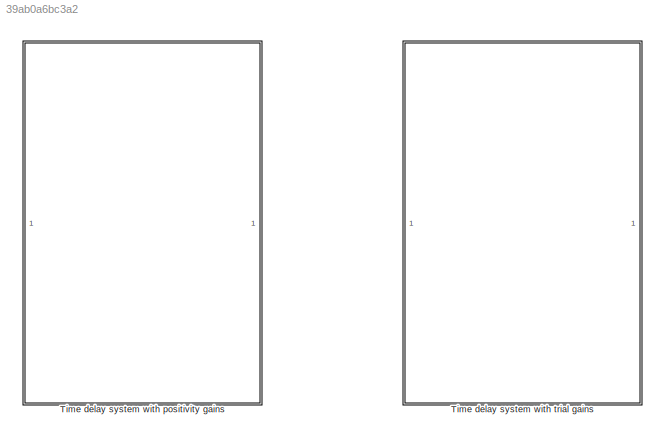
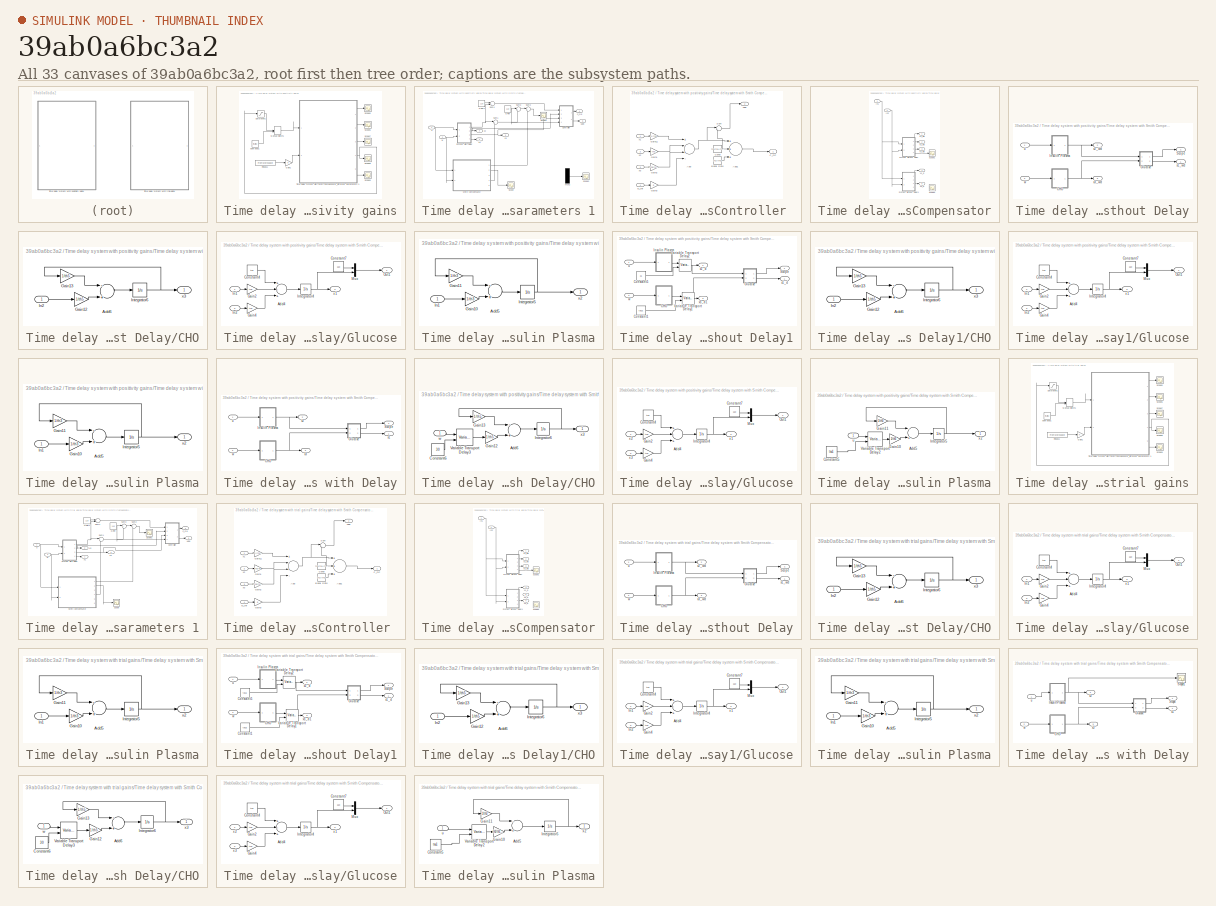
[diagram: thumbnail index - all 33 canvases of the model, root first then tree order]
MODEL slx_39ab0a6bc3a2
KIND model
CONFIG AbsTol = auto
CONFIG EnableMultiTasking = off
CONFIG FixedStep = auto
CONFIG MaxStep = auto
CONFIG MinStep = auto
CONFIG RelTol = 1e-3
CONFIG SampleTimeConstraint = Unconstrained
CONFIG Solver = VariableStepAuto
CONFIG SolverName = VariableStepAuto
CONFIG StartTime = 0.0
CONFIG StopTime = 1500
BLOCK [SubSystem] Time delay system with positivity gains
  Ports = []
  RequestExecContextInheritance = off
BLOCK [Gain] Time delay system with positivity gains/Gain1
  Gain = 0
  OutDataTypeStr = Inherit: Inherit via internal rule
  ParamDataTypeStr = Inherit: Inherit via internal rule
  SaturateOnIntegerOverflow = off
BLOCK [ManualSwitch] Time delay system with positivity gains/Manual Switch1
BLOCK [FromWorkspace] Time delay system with positivity gains/Repas1
  SampleTime = 0
  VariableName = [temps'  repas']
  ZeroCross = on
BLOCK [Saturate] Time delay system with positivity gains/Saturation1
  InputPortMap = u0
  LowerLimit = 0
  Ports = [1, 1]
  UpperLimit = 2
BLOCK [Scope] Time delay system with positivity gains/Scope5
  Floating = off
  NumInputPorts = 1
  Ports = [1]
  ScopeSpecificationString = Simulink.scopes.TimeScopeBlockCfg('CurrentConfiguration', extmgr.ConfigurationSet(extmgr.Configuration('Core','General UI',true),extmgr.Configuration('Core','Source UI',true),extmgr.Configuration('Sources','WiredSimulink',true,'DataLoggingVariableName','ScopeData1'),extmgr.Configuration('Visuals','Time Domain',true,'SerializedDisplays',{struct('MinYLimReal','-25.43913','MaxYLimReal','127.4096','YL...<+1572ch>
BLOCK [Scope] Time delay system with positivity gains/Scope6
  Floating = off
  NumInputPorts = 1
  Ports = [1]
  ScopeSpecificationString = Simulink.scopes.TimeScopeBlockCfg('CurrentConfiguration', extmgr.ConfigurationSet(extmgr.Configuration('Core','General UI',true),extmgr.Configuration('Core','Source UI',true),extmgr.Configuration('Sources','WiredSimulink',true,'DataLoggingVariableName','ScopeData2'),extmgr.Configuration('Visuals','Time Domain',true,'SerializedDisplays',{struct('MinYLimReal','-0.00342','MaxYLimReal','0.03394','YLab...<+1468ch>
BLOCK [Scope] Time delay system with positivity gains/Scope7
  Floating = off
  NumInputPorts = 1
  Ports = [1]
  ScopeSpecificationString = Simulink.scopes.TimeScopeBlockCfg('CurrentConfiguration', extmgr.ConfigurationSet(extmgr.Configuration('Core','General UI',true),extmgr.Configuration('Core','Source UI',true),extmgr.Configuration('Sources','WiredSimulink',true,'DataLoggingVariableName','ScopeData3'),extmgr.Configuration('Visuals','Time Domain',true,'SerializedDisplays',{struct('MinYLimReal','-0.15474','MaxYLimReal','1.39269','YLab...<+1402ch>
BLOCK [Scope] Time delay system with positivity gains/Scope8
  Floating = off
  NumInputPorts = 1
  Ports = [1]
  ScopeSpecificationString = Simulink.scopes.TimeScopeBlockCfg('CurrentConfiguration', extmgr.ConfigurationSet(extmgr.Configuration('Core','General UI',true),extmgr.Configuration('Core','Source UI',true),extmgr.Configuration('Sources','WiredSimulink',true,'DataLoggingVariableName','ScopeData4'),extmgr.Configuration('Visuals','Time Domain',true,'SerializedDisplays',{struct('MinYLimReal','-0.61998','MaxYLimReal','2.57162','YLab...<+1468ch>
BLOCK [Scope] Time delay system with positivity gains/Scope9
  Floating = off
  NumInputPorts = 1
  Ports = [1]
  ScopeSpecificationString = Simulink.scopes.TimeScopeBlockCfg('CurrentConfiguration', extmgr.ConfigurationSet(extmgr.Configuration('Core','General UI',true),extmgr.Configuration('Core','Source UI',true),extmgr.Configuration('Sources','WiredSimulink',true,'DataLoggingVariableName','ScopeData5'),extmgr.Configuration('Visuals','Time Domain',true,'SerializedDisplays',{struct('MinYLimReal','-4.24966','MaxYLimReal','0.88241','YLab...<+1496ch>
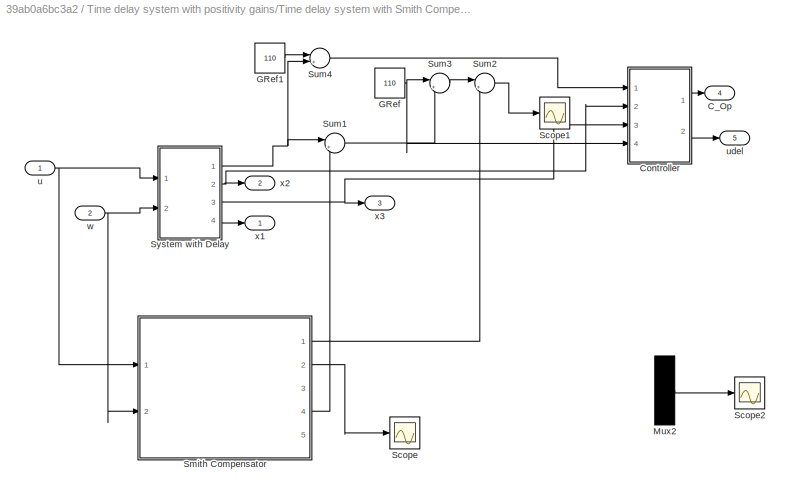
BLOCK [SubSystem] Time delay system with positivity gains/Time delay system with Smith Compensator_different parameters 1
  Ports = [2, 5]
  RequestExecContextInheritance = off
BLOCK [Outport] Time delay system with positivity gains/Time delay system with Smith Compensator_different parameters 1/C_Op
  IconDisplay = Port number
  Port = 4
BLOCK [SubSystem] Time delay system with positivity gains/Time delay system with Smith Compensator_different parameters 1/Controller 
  Ports = [4, 2]
  RequestExecContextInheritance = off
BLOCK [Sum] Time delay system with positivity gains/Time delay system with Smith Compensator_different parameters 1/Controller /Add
  InputSameDT = off
  Inputs = +-+-
  OutDataTypeStr = Inherit: Inherit via internal rule
  Ports = [4, 1]
  SaturateOnIntegerOverflow = off
BLOCK [Sum] Time delay system with positivity gains/Time delay system with Smith Compensator_different parameters 1/Controller /Add1
  InputSameDT = off
  Inputs = +++
  OutDataTypeStr = Inherit: Inherit via internal rule
  Ports = [3, 1]
  SaturateOnIntegerOverflow = off
BLOCK [Constant] Time delay system with positivity gains/Time delay system with Smith Compensator_different parameters 1/Controller /Basal Rate
  Value = th1/(th2)
  VectorParams1D = off
BLOCK [Outport] Time delay system with positivity gains/Time delay system with Smith Compensator_different parameters 1/Controller /C_OP
  IconDisplay = Port number
BLOCK [Constant] Time delay system with positivity gains/Time delay system with Smith Compensator_different parameters 1/Controller /Const
  Value = th3*th1/(th2)
  VectorParams1D = off
BLOCK [Gain] Time delay system with positivity gains/Time delay system with Smith Compensator_different parameters 1/Controller /Gain1
  Gain = th3
  OutDataTypeStr = Inherit: Inherit via internal rule
  ParamDataTypeStr = Inherit: Inherit via internal rule
  SaturateOnIntegerOverflow = off
BLOCK [Gain] Time delay system with positivity gains/Time delay system with Smith Compensator_different parameters 1/Controller /Gain11
  Gain = -1/(th2)
  OutDataTypeStr = Inherit: Inherit via internal rule
  ParamDataTypeStr = Inherit: Inherit via internal rule
  SaturateOnIntegerOverflow = off
BLOCK [Gain] Time delay system with positivity gains/Time delay system with Smith Compensator_different parameters 1/Controller /Gain2
  Gain = (th5*th4)/(th2)
  OutDataTypeStr = Inherit: Inherit via internal rule
  ParamDataTypeStr = Inherit: Inherit via internal rule
  SaturateOnIntegerOverflow = off
BLOCK [Gain] Time delay system with positivity gains/Time delay system with Smith Compensator_different parameters 1/Controller /Gain3
  Gain = 0
  OutDataTypeStr = Inherit: Inherit via internal rule
  ParamDataTypeStr = Inherit: Inherit via internal rule
  SaturateOnIntegerOverflow = off
BLOCK [Sum] Time delay system with positivity gains/Time delay system with Smith Compensator_different parameters 1/Controller /Sum
  IconShape = round
  InputSameDT = off
  Inputs = |++
  OutDataTypeStr = Inherit: Inherit via internal rule
  Ports = [2, 1]
  SaturateOnIntegerOverflow = off
BLOCK [Outport] Time delay system with positivity gains/Time delay system with Smith Compensator_different parameters 1/Controller /udel
  IconDisplay = Port number
  Port = 2
BLOCK [Inport] Time delay system with positivity gains/Time delay system with Smith Compensator_different parameters 1/Controller /x1
  IconDisplay = Port number
BLOCK [Inport] Time delay system with positivity gains/Time delay system with Smith Compensator_different parameters 1/Controller /x1_ref
  IconDisplay = Port number
  Port = 4
BLOCK [Inport] Time delay system with positivity gains/Time delay system with Smith Compensator_different parameters 1/Controller /x2
  IconDisplay = Port number
  Port = 2
BLOCK [Inport] Time delay system with positivity gains/Time delay system with Smith Compensator_different parameters 1/Controller /x3
  IconDisplay = Port number
  Port = 3
BLOCK [Constant] Time delay system with positivity gains/Time delay system with Smith Compensator_different parameters 1/GRef
  Value = 110
BLOCK [Constant] Time delay system with positivity gains/Time delay system with Smith Compensator_different parameters 1/GRef1
  Value = 110
BLOCK [Mux] Time delay system with positivity gains/Time delay system with Smith Compensator_different parameters 1/Mux2
  DisplayOption = bar
  Ports = [4, 1]
BLOCK [Scope] Time delay system with positivity gains/Time delay system with Smith Compensator_different parameters 1/Scope
  Floating = off
  NumInputPorts = 1
  Ports = [1]
  ScopeSpecificationString = Simulink.scopes.TimeScopeBlockCfg('CurrentConfiguration', extmgr.ConfigurationSet(extmgr.Configuration('Core','General UI',true),extmgr.Configuration('Core','Source UI',true),extmgr.Configuration('Sources','WiredSimulink',true,'DataLoggingVariableName','ScopeData1'),extmgr.Configuration('Visuals','Time Domain',true,'SerializedDisplays',{struct('MinYLimReal','0.00052','MaxYLimReal','0.01883','YLabe...<+1420ch>
BLOCK [Scope] Time delay system with positivity gains/Time delay system with Smith Compensator_different parameters 1/Scope1
  Floating = off
  NumInputPorts = 1
  Ports = [1]
  ScopeSpecificationString = Simulink.scopes.TimeScopeBlockCfg('CurrentConfiguration', extmgr.ConfigurationSet(extmgr.Configuration('Core','General UI',true),extmgr.Configuration('Core','Source UI',true),extmgr.Configuration('Sources','WiredSimulink',true,'DataLoggingVariableName','ScopeData9'),extmgr.Configuration('Visuals','Time Domain',true,'SerializedDisplays',{struct('MinYLimReal','108.58985','MaxYLimReal','122.69131','Y...<+1538ch>
BLOCK [Scope] Time delay system with positivity gains/Time delay system with Smith Compensator_different parameters 1/Scope2
  Floating = off
  NumInputPorts = 1
  Ports = [1]
  ScopeSpecificationString = Simulink.scopes.TimeScopeBlockCfg('CurrentConfiguration', extmgr.ConfigurationSet(extmgr.Configuration('Core','General UI',true),extmgr.Configuration('Core','Source UI',true),extmgr.Configuration('Sources','WiredSimulink',true,'DataLoggingVariableName','ScopeData10'),extmgr.Configuration('Visuals','Time Domain',true,'SerializedDisplays',{struct('MinYLimReal','-154.52259','MaxYLimReal','27.2658','Y...<+1688ch>
BLOCK [SubSystem] Time delay system with positivity gains/Time delay system with Smith Compensator_different parameters 1/Smith Compensator
  Ports = [2, 5]
  RequestExecContextInheritance = off
BLOCK [Inport] Time delay system with positivity gains/Time delay system with Smith Compensator_different parameters 1/Smith Compensator/In1
  IconDisplay = Port number
BLOCK [Inport] Time delay system with positivity gains/Time delay system with Smith Compensator_different parameters 1/Smith Compensator/In2
  IconDisplay = Port number
  Port = 2
BLOCK [Scope] Time delay system with positivity gains/Time delay system with Smith Compensator_different parameters 1/Smith Compensator/Scope1
  Floating = off
  NumInputPorts = 1
  Ports = [1]
  ScopeSpecificationString = Simulink.scopes.TimeScopeBlockCfg('CurrentConfiguration', extmgr.ConfigurationSet(extmgr.Configuration('Core','General UI',true),extmgr.Configuration('Core','Source UI',true),extmgr.Configuration('Sources','WiredSimulink',true,'DataLoggingVariableName','ScopeData2'),extmgr.Configuration('Visuals','Time Domain',true,'SerializedDisplays',{struct('MinYLimReal','42.62347','MaxYLimReal','716.38879','YL...<+1442ch>
BLOCK [Scope] Time delay system with positivity gains/Time delay system with Smith Compensator_different parameters 1/Smith Compensator/Scope2
  Floating = off
  NumInputPorts = 1
  Ports = [1]
  ScopeSpecificationString = Simulink.scopes.TimeScopeBlockCfg('CurrentConfiguration', extmgr.ConfigurationSet(extmgr.Configuration('Core','General UI',true),extmgr.Configuration('Core','Source UI',true),extmgr.Configuration('Sources','WiredSimulink',true,'DataLoggingVariableName','ScopeData3'),extmgr.Configuration('Visuals','Time Domain',true,'SerializedDisplays',{struct('MinYLimReal','42.62347','MaxYLimReal','716.38879','YL...<+1442ch>
BLOCK [SubSystem] Time delay system with positivity gains/Time delay system with Smith Compensator_different parameters 1/Smith Compensator/System without Delay
  Ports = [2, 4]
  RequestExecContextInheritance = off
BLOCK [SubSystem] Time delay system with positivity gains/Time delay system with Smith Compensator_different parameters 1/Smith Compensator/System without Delay/CHO
  Ports = [1, 1]
  RequestExecContextInheritance = off
BLOCK [Sum] Time delay system with positivity gains/Time delay system with Smith Compensator_different parameters 1/Smith Compensator/System without Delay/CHO/Add6
  InputSameDT = off
  Inputs = -+
  OutDataTypeStr = Inherit: Inherit via internal rule
  Ports = [2, 1]
  SaturateOnIntegerOverflow = off
BLOCK [Gain] Time delay system with positivity gains/Time delay system with Smith Compensator_different parameters 1/Smith Compensator/System without Delay/CHO/Gain12
  Gain = 1/th5
  OutDataTypeStr = Inherit: Inherit via internal rule
  ParamDataTypeStr = Inherit: Inherit via internal rule
  SaturateOnIntegerOverflow = off
BLOCK [Gain] Time delay system with positivity gains/Time delay system with Smith Compensator_different parameters 1/Smith Compensator/System without Delay/CHO/Gain13
  Gain = 1/th5
  OutDataTypeStr = Inherit: Inherit via internal rule
  ParamDataTypeStr = Inherit: Inherit via internal rule
  SaturateOnIntegerOverflow = off
BLOCK [Inport] Time delay system with positivity gains/Time delay system with Smith Compensator_different parameters 1/Smith Compensator/System without Delay/CHO/In2
  IconDisplay = Port number
BLOCK [Integrator] Time delay system with positivity gains/Time delay system with Smith Compensator_different parameters 1/Smith Compensator/System without Delay/CHO/Integrator6
  Ports = [1, 1]
  ZeroCross = off
BLOCK [Outport] Time delay system with positivity gains/Time delay system with Smith Compensator_different parameters 1/Smith Compensator/System without Delay/CHO/x3
  IconDisplay = Port number
BLOCK [SubSystem] Time delay system with positivity gains/Time delay system with Smith Compensator_different parameters 1/Smith Compensator/System without Delay/Glucose
  Ports = [2, 2]
  RequestExecContextInheritance = off
BLOCK [Sum] Time delay system with positivity gains/Time delay system with Smith Compensator_different parameters 1/Smith Compensator/System without Delay/Glucose/Add4
  InputSameDT = off
  Inputs = +-+
  OutDataTypeStr = Inherit: Inherit via internal rule
  Ports = [3, 1]
  SaturateOnIntegerOverflow = off
BLOCK [Constant] Time delay system with positivity gains/Time delay system with Smith Compensator_different parameters 1/Smith Compensator/System without Delay/Glucose/Constant4
  Value = th1
  VectorParams1D = off
BLOCK [Constant] Time delay system with positivity gains/Time delay system with Smith Compensator_different parameters 1/Smith Compensator/System without Delay/Glucose/Constant7
  Value = 110
  VectorParams1D = off
BLOCK [Gain] Time delay system with positivity gains/Time delay system with Smith Compensator_different parameters 1/Smith Compensator/System without Delay/Glucose/Gain2
  Gain = th2
  OutDataTypeStr = Inherit: Inherit via internal rule
  ParamDataTypeStr = Inherit: Inherit via internal rule
  SaturateOnIntegerOverflow = off
BLOCK [Gain] Time delay system with positivity gains/Time delay system with Smith Compensator_different parameters 1/Smith Compensator/System without Delay/Glucose/Gain4
  Gain = th4
  OutDataTypeStr = Inherit: Inherit via internal rule
  ParamDataTypeStr = Inherit: Inherit via internal rule
  SaturateOnIntegerOverflow = off
BLOCK [Inport] Time delay system with positivity gains/Time delay system with Smith Compensator_different parameters 1/Smith Compensator/System without Delay/Glucose/In1
  IconDisplay = Port number
BLOCK [Inport] Time delay system with positivity gains/Time delay system with Smith Compensator_different parameters 1/Smith Compensator/System without Delay/Glucose/In2
  IconDisplay = Port number
  Port = 2
BLOCK [Integrator] Time delay system with positivity gains/Time delay system with Smith Compensator_different parameters 1/Smith Compensator/System without Delay/Glucose/Integrator4
  InitialCondition = 110
  Ports = [1, 1]
  ZeroCross = off
BLOCK [Mux] Time delay system with positivity gains/Time delay system with Smith Compensator_different parameters 1/Smith Compensator/System without Delay/Glucose/Mux
  DisplayOption = bar
  Inputs = 2
  Ports = [2, 1]
BLOCK [Outport] Time delay system with positivity gains/Time delay system with Smith Compensator_different parameters 1/Smith Compensator/System without Delay/Glucose/Out1
  IconDisplay = Port number
BLOCK [Outport] Time delay system with positivity gains/Time delay system with Smith Compensator_different parameters 1/Smith Compensator/System without Delay/Glucose/x1
  IconDisplay = Port number
  Port = 2
BLOCK [SubSystem] Time delay system with positivity gains/Time delay system with Smith Compensator_different parameters 1/Smith Compensator/System without Delay/Insulin Plasma
  Ports = [1, 1]
  RequestExecContextInheritance = off
BLOCK [Sum] Time delay system with positivity gains/Time delay system with Smith Compensator_different parameters 1/Smith Compensator/System without Delay/Insulin Plasma/Add5
  InputSameDT = off
  Inputs = -+
  OutDataTypeStr = Inherit: Inherit via internal rule
  Ports = [2, 1]
  SaturateOnIntegerOverflow = off
BLOCK [Gain] Time delay system with positivity gains/Time delay system with Smith Compensator_different parameters 1/Smith Compensator/System without Delay/Insulin Plasma/Gain10
  Gain = 1/th3
  OutDataTypeStr = Inherit: Inherit via internal rule
  ParamDataTypeStr = Inherit: Inherit via internal rule
  SaturateOnIntegerOverflow = off
BLOCK [Gain] Time delay system with positivity gains/Time delay system with Smith Compensator_different parameters 1/Smith Compensator/System without Delay/Insulin Plasma/Gain11
  Gain = 1/th3
  OutDataTypeStr = Inherit: Inherit via internal rule
  ParamDataTypeStr = Inherit: Inherit via internal rule
  SaturateOnIntegerOverflow = off
BLOCK [Inport] Time delay system with positivity gains/Time delay system with Smith Compensator_different parameters 1/Smith Compensator/System without Delay/Insulin Plasma/In1
  IconDisplay = Port number
BLOCK [Integrator] Time delay system with positivity gains/Time delay system with Smith Compensator_different parameters 1/Smith Compensator/System without Delay/Insulin Plasma/Integrator5
  InitialCondition = 0.017
  Ports = [1, 1]
  ZeroCross = off
BLOCK [Outport] Time delay system with positivity gains/Time delay system with Smith Compensator_different parameters 1/Smith Compensator/System without Delay/Insulin Plasma/x2
  IconDisplay = Port number
BLOCK [Outport] Time delay system with positivity gains/Time delay system with Smith Compensator_different parameters 1/Smith Compensator/System without Delay/Scope
  IconDisplay = Port number
  Port = 4
BLOCK [Inport] Time delay system with positivity gains/Time delay system with Smith Compensator_different parameters 1/Smith Compensator/System without Delay/u
  IconDisplay = Port number
BLOCK [Inport] Time delay system with positivity gains/Time delay system with Smith Compensator_different parameters 1/Smith Compensator/System without Delay/w
  IconDisplay = Port number
  Port = 2
BLOCK [Outport] Time delay system with positivity gains/Time delay system with Smith Compensator_different parameters 1/Smith Compensator/System without Delay/x1_wd
  IconDisplay = Port number
BLOCK [Outport] Time delay system with positivity gains/Time delay system with Smith Compensator_different parameters 1/Smith Compensator/System without Delay/x2_wd
  IconDisplay = Port number
  Port = 2
BLOCK [Outport] Time delay system with positivity gains/Time delay system with Smith Compensator_different parameters 1/Smith Compensator/System without Delay/x3_wd
  IconDisplay = Port number
  Port = 3
BLOCK [SubSystem] Time delay system with positivity gains/Time delay system with Smith Compensator_different parameters 1/Smith Compensator/System without Delay1
  Ports = [2, 4]
  RequestExecContextInheritance = off
BLOCK [SubSystem] Time delay system with positivity gains/Time delay system with Smith Compensator_different parameters 1/Smith Compensator/System without Delay1/CHO
  Ports = [1, 1]
  RequestExecContextInheritance = off
BLOCK [Sum] Time delay system with positivity gains/Time delay system with Smith Compensator_different parameters 1/Smith Compensator/System without Delay1/CHO/Add6
  InputSameDT = off
  Inputs = -+
  OutDataTypeStr = Inherit: Inherit via internal rule
  Ports = [2, 1]
  SaturateOnIntegerOverflow = off
BLOCK [Gain] Time delay system with positivity gains/Time delay system with Smith Compensator_different parameters 1/Smith Compensator/System without Delay1/CHO/Gain12
  Gain = 1/th5
  OutDataTypeStr = Inherit: Inherit via internal rule
  ParamDataTypeStr = Inherit: Inherit via internal rule
  SaturateOnIntegerOverflow = off
BLOCK [Gain] Time delay system with positivity gains/Time delay system with Smith Compensator_different parameters 1/Smith Compensator/System without Delay1/CHO/Gain13
  Gain = 1/th5
  OutDataTypeStr = Inherit: Inherit via internal rule
  ParamDataTypeStr = Inherit: Inherit via internal rule
  SaturateOnIntegerOverflow = off
BLOCK [Inport] Time delay system with positivity gains/Time delay system with Smith Compensator_different parameters 1/Smith Compensator/System without Delay1/CHO/In2
  IconDisplay = Port number
BLOCK [Integrator] Time delay system with positivity gains/Time delay system with Smith Compensator_different parameters 1/Smith Compensator/System without Delay1/CHO/Integrator6
  Ports = [1, 1]
  ZeroCross = off
BLOCK [Outport] Time delay system with positivity gains/Time delay system with Smith Compensator_different parameters 1/Smith Compensator/System without Delay1/CHO/x3
  IconDisplay = Port number
BLOCK [Constant] Time delay system with positivity gains/Time delay system with Smith Compensator_different parameters 1/Smith Compensator/System without Delay1/Constant1
  Value = tau2
BLOCK [Constant] Time delay system with positivity gains/Time delay system with Smith Compensator_different parameters 1/Smith Compensator/System without Delay1/Constant5
  Value = 15
BLOCK [SubSystem] Time delay system with positivity gains/Time delay system with Smith Compensator_different parameters 1/Smith Compensator/System without Delay1/Glucose
  Ports = [2, 2]
  RequestExecContextInheritance = off
BLOCK [Sum] Time delay system with positivity gains/Time delay system with Smith Compensator_different parameters 1/Smith Compensator/System without Delay1/Glucose/Add4
  InputSameDT = off
  Inputs = +-+
  OutDataTypeStr = Inherit: Inherit via internal rule
  Ports = [3, 1]
  SaturateOnIntegerOverflow = off
BLOCK [Constant] Time delay system with positivity gains/Time delay system with Smith Compensator_different parameters 1/Smith Compensator/System without Delay1/Glucose/Constant4
  Value = th1
  VectorParams1D = off
BLOCK [Constant] Time delay system with positivity gains/Time delay system with Smith Compensator_different parameters 1/Smith Compensator/System without Delay1/Glucose/Constant7
  Value = 110
  VectorParams1D = off
BLOCK [Gain] Time delay system with positivity gains/Time delay system with Smith Compensator_different parameters 1/Smith Compensator/System without Delay1/Glucose/Gain2
  Gain = th2
  OutDataTypeStr = Inherit: Inherit via internal rule
  ParamDataTypeStr = Inherit: Inherit via internal rule
  SaturateOnIntegerOverflow = off
BLOCK [Gain] Time delay system with positivity gains/Time delay system with Smith Compensator_different parameters 1/Smith Compensator/System without Delay1/Glucose/Gain4
  Gain = th4
  OutDataTypeStr = Inherit: Inherit via internal rule
  ParamDataTypeStr = Inherit: Inherit via internal rule
  SaturateOnIntegerOverflow = off
BLOCK [Inport] Time delay system with positivity gains/Time delay system with Smith Compensator_different parameters 1/Smith Compensator/System without Delay1/Glucose/In1
  IconDisplay = Port number
BLOCK [Inport] Time delay system with positivity gains/Time delay system with Smith Compensator_different parameters 1/Smith Compensator/System without Delay1/Glucose/In2
  IconDisplay = Port number
  Port = 2
BLOCK [Integrator] Time delay system with positivity gains/Time delay system with Smith Compensator_different parameters 1/Smith Compensator/System without Delay1/Glucose/Integrator4
  InitialCondition = 110
  Ports = [1, 1]
  ZeroCross = off
BLOCK [Mux] Time delay system with positivity gains/Time delay system with Smith Compensator_different parameters 1/Smith Compensator/System without Delay1/Glucose/Mux
  DisplayOption = bar
  Inputs = 2
  Ports = [2, 1]
BLOCK [Outport] Time delay system with positivity gains/Time delay system with Smith Compensator_different parameters 1/Smith Compensator/System without Delay1/Glucose/Out1
  IconDisplay = Port number
BLOCK [Outport] Time delay system with positivity gains/Time delay system with Smith Compensator_different parameters 1/Smith Compensator/System without Delay1/Glucose/x1
  IconDisplay = Port number
  Port = 2
BLOCK [SubSystem] Time delay system with positivity gains/Time delay system with Smith Compensator_different parameters 1/Smith Compensator/System without Delay1/Insulin Plasma
  Ports = [1, 1]
  RequestExecContextInheritance = off
BLOCK [Sum] Time delay system with positivity gains/Time delay system with Smith Compensator_different parameters 1/Smith Compensator/System without Delay1/Insulin Plasma/Add5
  InputSameDT = off
  Inputs = -+
  OutDataTypeStr = Inherit: Inherit via internal rule
  Ports = [2, 1]
  SaturateOnIntegerOverflow = off
BLOCK [Gain] Time delay system with positivity gains/Time delay system with Smith Compensator_different parameters 1/Smith Compensator/System without Delay1/Insulin Plasma/Gain10
  Gain = 1/th3
  OutDataTypeStr = Inherit: Inherit via internal rule
  ParamDataTypeStr = Inherit: Inherit via internal rule
  SaturateOnIntegerOverflow = off
BLOCK [Gain] Time delay system with positivity gains/Time delay system with Smith Compensator_different parameters 1/Smith Compensator/System without Delay1/Insulin Plasma/Gain11
  Gain = 1/th3
  OutDataTypeStr = Inherit: Inherit via internal rule
  ParamDataTypeStr = Inherit: Inherit via internal rule
  SaturateOnIntegerOverflow = off
BLOCK [Inport] Time delay system with positivity gains/Time delay system with Smith Compensator_different parameters 1/Smith Compensator/System without Delay1/Insulin Plasma/In1
  IconDisplay = Port number
BLOCK [Integrator] Time delay system with positivity gains/Time delay system with Smith Compensator_different parameters 1/Smith Compensator/System without Delay1/Insulin Plasma/Integrator5
  InitialCondition = 0.017
  Ports = [1, 1]
  ZeroCross = off
BLOCK [Outport] Time delay system with positivity gains/Time delay system with Smith Compensator_different parameters 1/Smith Compensator/System without Delay1/Insulin Plasma/x2
  IconDisplay = Port number
BLOCK [Outport] Time delay system with positivity gains/Time delay system with Smith Compensator_different parameters 1/Smith Compensator/System without Delay1/Scope
  IconDisplay = Port number
  Port = 4
BLOCK [VariableTransportDelay] Time delay system with positivity gains/Time delay system with Smith Compensator_different parameters 1/Smith Compensator/System without Delay1/Variable Transport Delay1
  MaximumDelay = 30
  Ports = [2, 1]
  VariableDelayType = Variable transport delay
BLOCK [VariableTransportDelay] Time delay system with positivity gains/Time delay system with Smith Compensator_different parameters 1/Smith Compensator/System without Delay1/Variable Transport Delay2
  InitialOutput = 0.0167
  MaximumDelay = 20
  Ports = [2, 1]
  VariableDelayType = Variable transport delay
BLOCK [Inport] Time delay system with positivity gains/Time delay system with Smith Compensator_different parameters 1/Smith Compensator/System without Delay1/u
  IconDisplay = Port number
BLOCK [Inport] Time delay system with positivity gains/Time delay system with Smith Compensator_different parameters 1/Smith Compensator/System without Delay1/w
  IconDisplay = Port number
  Port = 2
BLOCK [Outport] Time delay system with positivity gains/Time delay system with Smith Compensator_different parameters 1/Smith Compensator/System without Delay1/x1_d
  IconDisplay = Port number
BLOCK [Outport] Time delay system with positivity gains/Time delay system with Smith Compensator_different parameters 1/Smith Compensator/System without Delay1/x2_d
  IconDisplay = Port number
  Port = 2
BLOCK [Outport] Time delay system with positivity gains/Time delay system with Smith Compensator_different parameters 1/Smith Compensator/System without Delay1/x3_d1
  IconDisplay = Port number
  Port = 3
BLOCK [Outport] Time delay system with positivity gains/Time delay system with Smith Compensator_different parameters 1/Smith Compensator/x1_d
  IconDisplay = Port number
  Port = 4
BLOCK [Outport] Time delay system with positivity gains/Time delay system with Smith Compensator_different parameters 1/Smith Compensator/x1_wd
  IconDisplay = Port number
BLOCK [Outport] Time delay system with positivity gains/Time delay system with Smith Compensator_different parameters 1/Smith Compensator/x2_wd
  IconDisplay = Port number
  Port = 2
BLOCK [Outport] Time delay system with positivity gains/Time delay system with Smith Compensator_different parameters 1/Smith Compensator/x3_d
  IconDisplay = Port number
  Port = 5
BLOCK [Outport] Time delay system with positivity gains/Time delay system with Smith Compensator_different parameters 1/Smith Compensator/x3_wd
  IconDisplay = Port number
  Port = 3
BLOCK [Sum] Time delay system with positivity gains/Time delay system with Smith Compensator_different parameters 1/Sum1
  IconShape = round
  InputSameDT = off
  Inputs = |+-
  OutDataTypeStr = Inherit: Inherit via internal rule
  Ports = [2, 1]
  SaturateOnIntegerOverflow = off
BLOCK [Sum] Time delay system with positivity gains/Time delay system with Smith Compensator_different parameters 1/Sum2
  IconShape = round
  InputSameDT = off
  Inputs = |+-
  OutDataTypeStr = Inherit: Inherit via internal rule
  Ports = [2, 1]
  SaturateOnIntegerOverflow = off
BLOCK [Sum] Time delay system with positivity gains/Time delay system with Smith Compensator_different parameters 1/Sum3
  IconShape = round
  InputSameDT = off
  Inputs = |+-
  OutDataTypeStr = Inherit: Inherit via internal rule
  Ports = [2, 1]
  SaturateOnIntegerOverflow = off
BLOCK [Sum] Time delay system with positivity gains/Time delay system with Smith Compensator_different parameters 1/Sum4
  IconShape = round
  InputSameDT = off
  Inputs = |+-
  OutDataTypeStr = Inherit: Inherit via internal rule
  Ports = [2, 1]
  SaturateOnIntegerOverflow = off
BLOCK [SubSystem] Time delay system with positivity gains/Time delay system with Smith Compensator_different parameters 1/System with Delay
  Ports = [2, 4]
  RequestExecContextInheritance = off
BLOCK [SubSystem] Time delay system with positivity gains/Time delay system with Smith Compensator_different parameters 1/System with Delay/CHO
  Ports = [1, 1]
  RequestExecContextInheritance = off
BLOCK [Sum] Time delay system with positivity gains/Time delay system with Smith Compensator_different parameters 1/System with Delay/CHO/Add6
  InputSameDT = off
  Inputs = -+
  OutDataTypeStr = Inherit: Inherit via internal rule
  Ports = [2, 1]
  SaturateOnIntegerOverflow = off
BLOCK [Constant] Time delay system with positivity gains/Time delay system with Smith Compensator_different parameters 1/System with Delay/CHO/Constant6
  Value = 30
  VectorParams1D = off
BLOCK [Gain] Time delay system with positivity gains/Time delay system with Smith Compensator_different parameters 1/System with Delay/CHO/Gain12
  Gain = 1/th5
  OutDataTypeStr = Inherit: Inherit via internal rule
  ParamDataTypeStr = Inherit: Inherit via internal rule
  SaturateOnIntegerOverflow = off
BLOCK [Gain] Time delay system with positivity gains/Time delay system with Smith Compensator_different parameters 1/System with Delay/CHO/Gain13
  Gain = 1/th5
  OutDataTypeStr = Inherit: Inherit via internal rule
  ParamDataTypeStr = Inherit: Inherit via internal rule
  SaturateOnIntegerOverflow = off
BLOCK [Integrator] Time delay system with positivity gains/Time delay system with Smith Compensator_different parameters 1/System with Delay/CHO/Integrator6
  Ports = [1, 1]
  ZeroCross = off
BLOCK [VariableTransportDelay] Time delay system with positivity gains/Time delay system with Smith Compensator_different parameters 1/System with Delay/CHO/Variable Transport Delay3
  MaximumDelay = 30
  Ports = [2, 1]
  VariableDelayType = Variable transport delay
BLOCK [Inport] Time delay system with positivity gains/Time delay system with Smith Compensator_different parameters 1/System with Delay/CHO/w
  IconDisplay = Port number
BLOCK [Outport] Time delay system with positivity gains/Time delay system with Smith Compensator_different parameters 1/System with Delay/CHO/x3
  IconDisplay = Port number
BLOCK [SubSystem] Time delay system with positivity gains/Time delay system with Smith Compensator_different parameters 1/System with Delay/Glucose
  Ports = [2, 2]
  RequestExecContextInheritance = off
BLOCK [Sum] Time delay system with positivity gains/Time delay system with Smith Compensator_different parameters 1/System with Delay/Glucose/Add4
  InputSameDT = off
  Inputs = +-+
  OutDataTypeStr = Inherit: Inherit via internal rule
  Ports = [3, 1]
  SaturateOnIntegerOverflow = off
BLOCK [Constant] Time delay system with positivity gains/Time delay system with Smith Compensator_different parameters 1/System with Delay/Glucose/Constant4
  Value = th1
  VectorParams1D = off
BLOCK [Constant] Time delay system with positivity gains/Time delay system with Smith Compensator_different parameters 1/System with Delay/Glucose/Constant7
  Value = 110
  VectorParams1D = off
BLOCK [Gain] Time delay system with positivity gains/Time delay system with Smith Compensator_different parameters 1/System with Delay/Glucose/Gain2
  Gain = th2
  OutDataTypeStr = Inherit: Inherit via internal rule
  ParamDataTypeStr = Inherit: Inherit via internal rule
  SaturateOnIntegerOverflow = off
BLOCK [Gain] Time delay system with positivity gains/Time delay system with Smith Compensator_different parameters 1/System with Delay/Glucose/Gain4
  Gain = th4
  OutDataTypeStr = Inherit: Inherit via internal rule
  ParamDataTypeStr = Inherit: Inherit via internal rule
  SaturateOnIntegerOverflow = off
BLOCK [Integrator] Time delay system with positivity gains/Time delay system with Smith Compensator_different parameters 1/System with Delay/Glucose/Integrator4
  InitialCondition = 110
  Ports = [1, 1]
  ZeroCross = off
BLOCK [Mux] Time delay system with positivity gains/Time delay system with Smith Compensator_different parameters 1/System with Delay/Glucose/Mux
  DisplayOption = bar
  Inputs = 2
  Ports = [2, 1]
BLOCK [Outport] Time delay system with positivity gains/Time delay system with Smith Compensator_different parameters 1/System with Delay/Glucose/Out1
  IconDisplay = Port number
BLOCK [Outport] Time delay system with positivity gains/Time delay system with Smith Compensator_different parameters 1/System with Delay/Glucose/x1
  IconDisplay = Port number
  Port = 2
BLOCK [Inport] Time delay system with positivity gains/Time delay system with Smith Compensator_different parameters 1/System with Delay/Glucose/x2
  IconDisplay = Port number
BLOCK [Inport] Time delay system with positivity gains/Time delay system with Smith Compensator_different parameters 1/System with Delay/Glucose/x3
  IconDisplay = Port number
  Port = 2
BLOCK [SubSystem] Time delay system with positivity gains/Time delay system with Smith Compensator_different parameters 1/System with Delay/Insulin Plasma
  Ports = [1, 1]
  RequestExecContextInheritance = off
BLOCK [Sum] Time delay system with positivity gains/Time delay system with Smith Compensator_different parameters 1/System with Delay/Insulin Plasma/Add5
  InputSameDT = off
  Inputs = -+
  OutDataTypeStr = Inherit: Inherit via internal rule
  Ports = [2, 1]
  SaturateOnIntegerOverflow = off
BLOCK [Constant] Time delay system with positivity gains/Time delay system with Smith Compensator_different parameters 1/System with Delay/Insulin Plasma/Constant5
  Value = tau1
BLOCK [Gain] Time delay system with positivity gains/Time delay system with Smith Compensator_different parameters 1/System with Delay/Insulin Plasma/Gain10
  Gain = 1/th3
  OutDataTypeStr = Inherit: Inherit via internal rule
  ParamDataTypeStr = Inherit: Inherit via internal rule
  SaturateOnIntegerOverflow = off
BLOCK [Gain] Time delay system with positivity gains/Time delay system with Smith Compensator_different parameters 1/System with Delay/Insulin Plasma/Gain11
  Gain = 1/th3
  OutDataTypeStr = Inherit: Inherit via internal rule
  ParamDataTypeStr = Inherit: Inherit via internal rule
  SaturateOnIntegerOverflow = off
BLOCK [Integrator] Time delay system with positivity gains/Time delay system with Smith Compensator_different parameters 1/System with Delay/Insulin Plasma/Integrator5
  InitialCondition = th1/(th2)
  Ports = [1, 1]
  ZeroCross = off
BLOCK [VariableTransportDelay] Time delay system with positivity gains/Time delay system with Smith Compensator_different parameters 1/System with Delay/Insulin Plasma/Variable Transport Delay2
  MaximumDelay = 20
  Ports = [2, 1]
  VariableDelayType = Variable transport delay
BLOCK [Inport] Time delay system with positivity gains/Time delay system with Smith Compensator_different parameters 1/System with Delay/Insulin Plasma/u
  IconDisplay = Port number
BLOCK [Outport] Time delay system with positivity gains/Time delay system with Smith Compensator_different parameters 1/System with Delay/Insulin Plasma/x2
  IconDisplay = Port number
BLOCK [Outport] Time delay system with positivity gains/Time delay system with Smith Compensator_different parameters 1/System with Delay/Scope
  IconDisplay = Port number
  Port = 4
BLOCK [Inport] Time delay system with positivity gains/Time delay system with Smith Compensator_different parameters 1/System with Delay/u
  IconDisplay = Port number
BLOCK [Inport] Time delay system with positivity gains/Time delay system with Smith Compensator_different parameters 1/System with Delay/w
  IconDisplay = Port number
  Port = 2
BLOCK [Outport] Time delay system with positivity gains/Time delay system with Smith Compensator_different parameters 1/System with Delay/x1
  IconDisplay = Port number
BLOCK [Outport] Time delay system with positivity gains/Time delay system with Smith Compensator_different parameters 1/System with Delay/x2
  IconDisplay = Port number
  Port = 2
BLOCK [Outport] Time delay system with positivity gains/Time delay system with Smith Compensator_different parameters 1/System with Delay/x3
  IconDisplay = Port number
  Port = 3
BLOCK [Inport] Time delay system with positivity gains/Time delay system with Smith Compensator_different parameters 1/u
  IconDisplay = Port number
BLOCK [Outport] Time delay system with positivity gains/Time delay system with Smith Compensator_different parameters 1/udel
  IconDisplay = Port number
  Port = 5
BLOCK [Inport] Time delay system with positivity gains/Time delay system with Smith Compensator_different parameters 1/w
  IconDisplay = Port number
  Port = 2
BLOCK [Outport] Time delay system with positivity gains/Time delay system with Smith Compensator_different parameters 1/x1
  IconDisplay = Port number
BLOCK [Outport] Time delay system with positivity gains/Time delay system with Smith Compensator_different parameters 1/x2
  IconDisplay = Port number
  Port = 2
BLOCK [Outport] Time delay system with positivity gains/Time delay system with Smith Compensator_different parameters 1/x3
  IconDisplay = Port number
  Port = 3
BLOCK [Constant] Time delay system with positivity gains/open loop1
  Value = th1/th2
BLOCK [SubSystem] Time delay system with trial gains
  Ports = []
  RequestExecContextInheritance = off
BLOCK [Gain] Time delay system with trial gains/Gain1
  OutDataTypeStr = Inherit: Inherit via internal rule
  ParamDataTypeStr = Inherit: Inherit via internal rule
  SaturateOnIntegerOverflow = off
BLOCK [ManualSwitch] Time delay system with trial gains/Manual Switch1
BLOCK [FromWorkspace] Time delay system with trial gains/Repas1
  SampleTime = 0
  VariableName = [temps'  repas']
  ZeroCross = on
BLOCK [Saturate] Time delay system with trial gains/Saturation1
  InputPortMap = u0
  LowerLimit = 0
  Ports = [1, 1]
  UpperLimit = 2
BLOCK [Scope] Time delay system with trial gains/Scope5
  Floating = off
  NumInputPorts = 1
  Ports = [1]
  ScopeSpecificationString = Simulink.scopes.TimeScopeBlockCfg('CurrentConfiguration', extmgr.ConfigurationSet(extmgr.Configuration('Core','General UI',true),extmgr.Configuration('Core','Source UI',true),extmgr.Configuration('Sources','WiredSimulink',true,'DataLoggingVariableName','ScopeData1'),extmgr.Configuration('Visuals','Time Domain',true,'SerializedDisplays',{struct('MinYLimReal','-642.57688','MaxYLimReal','193.61965','...<+1580ch>
BLOCK [Scope] Time delay system with trial gains/Scope6
  Floating = off
  NumInputPorts = 1
  Ports = [1]
  ScopeSpecificationString = Simulink.scopes.TimeScopeBlockCfg('CurrentConfiguration', extmgr.ConfigurationSet(extmgr.Configuration('Core','General UI',true),extmgr.Configuration('Core','Source UI',true),extmgr.Configuration('Sources','WiredSimulink',true,'DataLoggingVariableName','ScopeData2'),extmgr.Configuration('Visuals','Time Domain',true,'SerializedDisplays',{struct('MinYLimReal','0.00904','MaxYLimReal','0.05105','YLabe...<+1400ch>
BLOCK [Scope] Time delay system with trial gains/Scope7
  Floating = off
  NumInputPorts = 1
  Ports = [1]
  ScopeSpecificationString = Simulink.scopes.TimeScopeBlockCfg('CurrentConfiguration', extmgr.ConfigurationSet(extmgr.Configuration('Core','General UI',true),extmgr.Configuration('Core','Source UI',true),extmgr.Configuration('Sources','WiredSimulink',true,'DataLoggingVariableName','ScopeData3'),extmgr.Configuration('Visuals','Time Domain',true,'SerializedDisplays',{struct('MinYLimReal','-0.15474','MaxYLimReal','1.39269','YLab...<+1402ch>
BLOCK [Scope] Time delay system with trial gains/Scope8
  Floating = off
  NumInputPorts = 1
  Ports = [1]
  ScopeSpecificationString = Simulink.scopes.TimeScopeBlockCfg('CurrentConfiguration', extmgr.ConfigurationSet(extmgr.Configuration('Core','General UI',true),extmgr.Configuration('Core','Source UI',true),extmgr.Configuration('Sources','WiredSimulink',true,'DataLoggingVariableName','ScopeData4'),extmgr.Configuration('Visuals','Time Domain',true,'SerializedDisplays',{struct('MinYLimReal','0.01644','MaxYLimReal','0.022','YLabelR...<+1458ch>
BLOCK [Scope] Time delay system with trial gains/Scope9
  Floating = off
  NumInputPorts = 1
  Ports = [1]
  ScopeSpecificationString = Simulink.scopes.TimeScopeBlockCfg('CurrentConfiguration', extmgr.ConfigurationSet(extmgr.Configuration('Core','General UI',true),extmgr.Configuration('Core','Source UI',true),extmgr.Configuration('Sources','WiredSimulink',true,'DataLoggingVariableName','ScopeData5'),extmgr.Configuration('Visuals','Time Domain',true,'SerializedDisplays',{struct('MinYLimReal','-0.40249','MaxYLimReal','0.04472','YLab...<+1525ch>
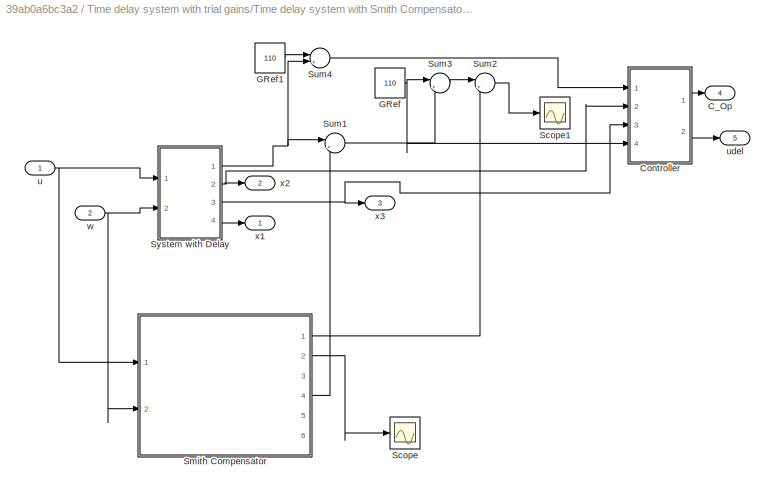
BLOCK [SubSystem] Time delay system with trial gains/Time delay system with Smith Compensator_different parameters 1
  Ports = [2, 5]
  RequestExecContextInheritance = off
BLOCK [Outport] Time delay system with trial gains/Time delay system with Smith Compensator_different parameters 1/C_Op
  IconDisplay = Port number
  Port = 4
BLOCK [SubSystem] Time delay system with trial gains/Time delay system with Smith Compensator_different parameters 1/Controller 
  Ports = [4, 2]
  RequestExecContextInheritance = off
BLOCK [Sum] Time delay system with trial gains/Time delay system with Smith Compensator_different parameters 1/Controller /Add
  InputSameDT = off
  Inputs = +-+-
  OutDataTypeStr = Inherit: Inherit via internal rule
  Ports = [4, 1]
  SaturateOnIntegerOverflow = off
BLOCK [Sum] Time delay system with trial gains/Time delay system with Smith Compensator_different parameters 1/Controller /Add1
  InputSameDT = off
  Inputs = +++
  OutDataTypeStr = Inherit: Inherit via internal rule
  Ports = [3, 1]
  SaturateOnIntegerOverflow = off
BLOCK [Constant] Time delay system with trial gains/Time delay system with Smith Compensator_different parameters 1/Controller /Basal Rate
  Value = th1/(th2)
  VectorParams1D = off
BLOCK [Outport] Time delay system with trial gains/Time delay system with Smith Compensator_different parameters 1/Controller /C_OP
  IconDisplay = Port number
BLOCK [Constant] Time delay system with trial gains/Time delay system with Smith Compensator_different parameters 1/Controller /Const
  Value = th3*th1/(th2*45)
  VectorParams1D = off
BLOCK [Gain] Time delay system with trial gains/Time delay system with Smith Compensator_different parameters 1/Controller /Gain1
  Gain = th3/45
  OutDataTypeStr = Inherit: Inherit via internal rule
  ParamDataTypeStr = Inherit: Inherit via internal rule
  SaturateOnIntegerOverflow = off
BLOCK [Gain] Time delay system with trial gains/Time delay system with Smith Compensator_different parameters 1/Controller /Gain11
  Gain = -1/(th2*45)
  OutDataTypeStr = Inherit: Inherit via internal rule
  ParamDataTypeStr = Inherit: Inherit via internal rule
  SaturateOnIntegerOverflow = off
BLOCK [Gain] Time delay system with trial gains/Time delay system with Smith Compensator_different parameters 1/Controller /Gain2
  Gain = (th5*th4)/(th2*30)
  OutDataTypeStr = Inherit: Inherit via internal rule
  ParamDataTypeStr = Inherit: Inherit via internal rule
  SaturateOnIntegerOverflow = off
BLOCK [Gain] Time delay system with trial gains/Time delay system with Smith Compensator_different parameters 1/Controller /Gain3
  Gain = 0
  OutDataTypeStr = Inherit: Inherit via internal rule
  ParamDataTypeStr = Inherit: Inherit via internal rule
  SaturateOnIntegerOverflow = off
BLOCK [Sum] Time delay system with trial gains/Time delay system with Smith Compensator_different parameters 1/Controller /Sum
  IconShape = round
  InputSameDT = off
  Inputs = |++
  OutDataTypeStr = Inherit: Inherit via internal rule
  Ports = [2, 1]
  SaturateOnIntegerOverflow = off
BLOCK [Outport] Time delay system with trial gains/Time delay system with Smith Compensator_different parameters 1/Controller /udel
  IconDisplay = Port number
  Port = 2
BLOCK [Inport] Time delay system with trial gains/Time delay system with Smith Compensator_different parameters 1/Controller /x1
  IconDisplay = Port number
BLOCK [Inport] Time delay system with trial gains/Time delay system with Smith Compensator_different parameters 1/Controller /x1_ref
  IconDisplay = Port number
  Port = 4
BLOCK [Inport] Time delay system with trial gains/Time delay system with Smith Compensator_different parameters 1/Controller /x2
  IconDisplay = Port number
  Port = 2
BLOCK [Inport] Time delay system with trial gains/Time delay system with Smith Compensator_different parameters 1/Controller /x3
  IconDisplay = Port number
  Port = 3
BLOCK [Constant] Time delay system with trial gains/Time delay system with Smith Compensator_different parameters 1/GRef
  Value = 110
BLOCK [Constant] Time delay system with trial gains/Time delay system with Smith Compensator_different parameters 1/GRef1
  Value = 110
BLOCK [Scope] Time delay system with trial gains/Time delay system with Smith Compensator_different parameters 1/Scope
  Floating = off
  NumInputPorts = 1
  Ports = [1]
  ScopeSpecificationString = Simulink.scopes.TimeScopeBlockCfg('CurrentConfiguration', extmgr.ConfigurationSet(extmgr.Configuration('Core','General UI',true),extmgr.Configuration('Core','Source UI',true),extmgr.Configuration('Sources','WiredSimulink',true,'DataLoggingVariableName','ScopeData1'),extmgr.Configuration('Visuals','Time Domain',true,'SerializedDisplays',{struct('MinYLimReal','0.00052','MaxYLimReal','0.01883','YLabe...<+1420ch>
BLOCK [Scope] Time delay system with trial gains/Time delay system with Smith Compensator_different parameters 1/Scope1
  Floating = off
  NumInputPorts = 1
  Ports = [1]
  ScopeSpecificationString = Simulink.scopes.TimeScopeBlockCfg('CurrentConfiguration', extmgr.ConfigurationSet(extmgr.Configuration('Core','General UI',true),extmgr.Configuration('Core','Source UI',true),extmgr.Configuration('Sources','WiredSimulink',true,'DataLoggingVariableName','ScopeData9'),extmgr.Configuration('Visuals','Time Domain',true,'SerializedDisplays',{struct('MinYLimReal','108.58985','MaxYLimReal','122.69131','Y...<+1538ch>
BLOCK [SubSystem] Time delay system with trial gains/Time delay system with Smith Compensator_different parameters 1/Smith Compensator
  Ports = [2, 6]
  RequestExecContextInheritance = off
BLOCK [Inport] Time delay system with trial gains/Time delay system with Smith Compensator_different parameters 1/Smith Compensator/In1
  IconDisplay = Port number
BLOCK [Inport] Time delay system with trial gains/Time delay system with Smith Compensator_different parameters 1/Smith Compensator/In2
  IconDisplay = Port number
  Port = 2
BLOCK [Scope] Time delay system with trial gains/Time delay system with Smith Compensator_different parameters 1/Smith Compensator/Scope1
  Floating = off
  NumInputPorts = 1
  Ports = [1]
  ScopeSpecificationString = Simulink.scopes.TimeScopeBlockCfg('CurrentConfiguration', extmgr.ConfigurationSet(extmgr.Configuration('Core','General UI',true),extmgr.Configuration('Core','Source UI',true),extmgr.Configuration('Sources','WiredSimulink',true,'DataLoggingVariableName','ScopeData2'),extmgr.Configuration('Visuals','Time Domain',true,'SerializedDisplays',{struct('MinYLimReal','42.62347','MaxYLimReal','716.38879','YL...<+1442ch>
BLOCK [Scope] Time delay system with trial gains/Time delay system with Smith Compensator_different parameters 1/Smith Compensator/Scope2
  Floating = off
  NumInputPorts = 1
  Ports = [1]
  ScopeSpecificationString = Simulink.scopes.TimeScopeBlockCfg('CurrentConfiguration', extmgr.ConfigurationSet(extmgr.Configuration('Core','General UI',true),extmgr.Configuration('Core','Source UI',true),extmgr.Configuration('Sources','WiredSimulink',true,'DataLoggingVariableName','ScopeData3'),extmgr.Configuration('Visuals','Time Domain',true,'SerializedDisplays',{struct('MinYLimReal','42.62347','MaxYLimReal','716.38879','YL...<+1442ch>
BLOCK [SubSystem] Time delay system with trial gains/Time delay system with Smith Compensator_different parameters 1/Smith Compensator/System without Delay
  Ports = [2, 4]
  RequestExecContextInheritance = off
BLOCK [SubSystem] Time delay system with trial gains/Time delay system with Smith Compensator_different parameters 1/Smith Compensator/System without Delay/CHO
  Ports = [1, 1]
  RequestExecContextInheritance = off
BLOCK [Sum] Time delay system with trial gains/Time delay system with Smith Compensator_different parameters 1/Smith Compensator/System without Delay/CHO/Add6
  InputSameDT = off
  Inputs = -+
  OutDataTypeStr = Inherit: Inherit via internal rule
  Ports = [2, 1]
  SaturateOnIntegerOverflow = off
BLOCK [Gain] Time delay system with trial gains/Time delay system with Smith Compensator_different parameters 1/Smith Compensator/System without Delay/CHO/Gain12
  Gain = 1/th5
  OutDataTypeStr = Inherit: Inherit via internal rule
  ParamDataTypeStr = Inherit: Inherit via internal rule
  SaturateOnIntegerOverflow = off
BLOCK [Gain] Time delay system with trial gains/Time delay system with Smith Compensator_different parameters 1/Smith Compensator/System without Delay/CHO/Gain13
  Gain = 1/th5
  OutDataTypeStr = Inherit: Inherit via internal rule
  ParamDataTypeStr = Inherit: Inherit via internal rule
  SaturateOnIntegerOverflow = off
BLOCK [Inport] Time delay system with trial gains/Time delay system with Smith Compensator_different parameters 1/Smith Compensator/System without Delay/CHO/In2
  IconDisplay = Port number
BLOCK [Integrator] Time delay system with trial gains/Time delay system with Smith Compensator_different parameters 1/Smith Compensator/System without Delay/CHO/Integrator6
  Ports = [1, 1]
  ZeroCross = off
BLOCK [Outport] Time delay system with trial gains/Time delay system with Smith Compensator_different parameters 1/Smith Compensator/System without Delay/CHO/x3
  IconDisplay = Port number
BLOCK [SubSystem] Time delay system with trial gains/Time delay system with Smith Compensator_different parameters 1/Smith Compensator/System without Delay/Glucose
  Ports = [2, 2]
  RequestExecContextInheritance = off
BLOCK [Sum] Time delay system with trial gains/Time delay system with Smith Compensator_different parameters 1/Smith Compensator/System without Delay/Glucose/Add4
  InputSameDT = off
  Inputs = +-+
  OutDataTypeStr = Inherit: Inherit via internal rule
  Ports = [3, 1]
  SaturateOnIntegerOverflow = off
BLOCK [Constant] Time delay system with trial gains/Time delay system with Smith Compensator_different parameters 1/Smith Compensator/System without Delay/Glucose/Constant4
  Value = th1
  VectorParams1D = off
BLOCK [Constant] Time delay system with trial gains/Time delay system with Smith Compensator_different parameters 1/Smith Compensator/System without Delay/Glucose/Constant7
  Value = 110
  VectorParams1D = off
BLOCK [Gain] Time delay system with trial gains/Time delay system with Smith Compensator_different parameters 1/Smith Compensator/System without Delay/Glucose/Gain2
  Gain = th2
  OutDataTypeStr = Inherit: Inherit via internal rule
  ParamDataTypeStr = Inherit: Inherit via internal rule
  SaturateOnIntegerOverflow = off
BLOCK [Gain] Time delay system with trial gains/Time delay system with Smith Compensator_different parameters 1/Smith Compensator/System without Delay/Glucose/Gain4
  Gain = th4
  OutDataTypeStr = Inherit: Inherit via internal rule
  ParamDataTypeStr = Inherit: Inherit via internal rule
  SaturateOnIntegerOverflow = off
BLOCK [Inport] Time delay system with trial gains/Time delay system with Smith Compensator_different parameters 1/Smith Compensator/System without Delay/Glucose/In1
  IconDisplay = Port number
BLOCK [Inport] Time delay system with trial gains/Time delay system with Smith Compensator_different parameters 1/Smith Compensator/System without Delay/Glucose/In2
  IconDisplay = Port number
  Port = 2
BLOCK [Integrator] Time delay system with trial gains/Time delay system with Smith Compensator_different parameters 1/Smith Compensator/System without Delay/Glucose/Integrator4
  InitialCondition = 110
  Ports = [1, 1]
  ZeroCross = off
BLOCK [Mux] Time delay system with trial gains/Time delay system with Smith Compensator_different parameters 1/Smith Compensator/System without Delay/Glucose/Mux
  DisplayOption = bar
  Inputs = 2
  Ports = [2, 1]
BLOCK [Outport] Time delay system with trial gains/Time delay system with Smith Compensator_different parameters 1/Smith Compensator/System without Delay/Glucose/Out1
  IconDisplay = Port number
BLOCK [Outport] Time delay system with trial gains/Time delay system with Smith Compensator_different parameters 1/Smith Compensator/System without Delay/Glucose/x1
  IconDisplay = Port number
  Port = 2
BLOCK [SubSystem] Time delay system with trial gains/Time delay system with Smith Compensator_different parameters 1/Smith Compensator/System without Delay/Insulin Plasma
  Ports = [1, 1]
  RequestExecContextInheritance = off
BLOCK [Sum] Time delay system with trial gains/Time delay system with Smith Compensator_different parameters 1/Smith Compensator/System without Delay/Insulin Plasma/Add5
  InputSameDT = off
  Inputs = -+
  OutDataTypeStr = Inherit: Inherit via internal rule
  Ports = [2, 1]
  SaturateOnIntegerOverflow = off
BLOCK [Gain] Time delay system with trial gains/Time delay system with Smith Compensator_different parameters 1/Smith Compensator/System without Delay/Insulin Plasma/Gain10
  Gain = 1/th3
  OutDataTypeStr = Inherit: Inherit via internal rule
  ParamDataTypeStr = Inherit: Inherit via internal rule
  SaturateOnIntegerOverflow = off
BLOCK [Gain] Time delay system with trial gains/Time delay system with Smith Compensator_different parameters 1/Smith Compensator/System without Delay/Insulin Plasma/Gain11
  Gain = 1/th3
  OutDataTypeStr = Inherit: Inherit via internal rule
  ParamDataTypeStr = Inherit: Inherit via internal rule
  SaturateOnIntegerOverflow = off
BLOCK [Inport] Time delay system with trial gains/Time delay system with Smith Compensator_different parameters 1/Smith Compensator/System without Delay/Insulin Plasma/In1
  IconDisplay = Port number
BLOCK [Integrator] Time delay system with trial gains/Time delay system with Smith Compensator_different parameters 1/Smith Compensator/System without Delay/Insulin Plasma/Integrator5
  InitialCondition = 0.017
  Ports = [1, 1]
  ZeroCross = off
BLOCK [Outport] Time delay system with trial gains/Time delay system with Smith Compensator_different parameters 1/Smith Compensator/System without Delay/Insulin Plasma/x2
  IconDisplay = Port number
BLOCK [Outport] Time delay system with trial gains/Time delay system with Smith Compensator_different parameters 1/Smith Compensator/System without Delay/Scope
  IconDisplay = Port number
  Port = 4
BLOCK [Inport] Time delay system with trial gains/Time delay system with Smith Compensator_different parameters 1/Smith Compensator/System without Delay/u
  IconDisplay = Port number
BLOCK [Inport] Time delay system with trial gains/Time delay system with Smith Compensator_different parameters 1/Smith Compensator/System without Delay/w
  IconDisplay = Port number
  Port = 2
BLOCK [Outport] Time delay system with trial gains/Time delay system with Smith Compensator_different parameters 1/Smith Compensator/System without Delay/x1_wd
  IconDisplay = Port number
BLOCK [Outport] Time delay system with trial gains/Time delay system with Smith Compensator_different parameters 1/Smith Compensator/System without Delay/x2_wd
  IconDisplay = Port number
  Port = 2
BLOCK [Outport] Time delay system with trial gains/Time delay system with Smith Compensator_different parameters 1/Smith Compensator/System without Delay/x3_wd
  IconDisplay = Port number
  Port = 3
BLOCK [SubSystem] Time delay system with trial gains/Time delay system with Smith Compensator_different parameters 1/Smith Compensator/System without Delay1
  Ports = [2, 4]
  RequestExecContextInheritance = off
BLOCK [SubSystem] Time delay system with trial gains/Time delay system with Smith Compensator_different parameters 1/Smith Compensator/System without Delay1/CHO
  Ports = [1, 1]
  RequestExecContextInheritance = off
BLOCK [Sum] Time delay system with trial gains/Time delay system with Smith Compensator_different parameters 1/Smith Compensator/System without Delay1/CHO/Add6
  InputSameDT = off
  Inputs = -+
  OutDataTypeStr = Inherit: Inherit via internal rule
  Ports = [2, 1]
  SaturateOnIntegerOverflow = off
BLOCK [Gain] Time delay system with trial gains/Time delay system with Smith Compensator_different parameters 1/Smith Compensator/System without Delay1/CHO/Gain12
  Gain = 1/th5
  OutDataTypeStr = Inherit: Inherit via internal rule
  ParamDataTypeStr = Inherit: Inherit via internal rule
  SaturateOnIntegerOverflow = off
BLOCK [Gain] Time delay system with trial gains/Time delay system with Smith Compensator_different parameters 1/Smith Compensator/System without Delay1/CHO/Gain13
  Gain = 1/th5
  OutDataTypeStr = Inherit: Inherit via internal rule
  ParamDataTypeStr = Inherit: Inherit via internal rule
  SaturateOnIntegerOverflow = off
BLOCK [Inport] Time delay system with trial gains/Time delay system with Smith Compensator_different parameters 1/Smith Compensator/System without Delay1/CHO/In2
  IconDisplay = Port number
BLOCK [Integrator] Time delay system with trial gains/Time delay system with Smith Compensator_different parameters 1/Smith Compensator/System without Delay1/CHO/Integrator6
  Ports = [1, 1]
  ZeroCross = off
BLOCK [Outport] Time delay system with trial gains/Time delay system with Smith Compensator_different parameters 1/Smith Compensator/System without Delay1/CHO/x3
  IconDisplay = Port number
BLOCK [Constant] Time delay system with trial gains/Time delay system with Smith Compensator_different parameters 1/Smith Compensator/System without Delay1/Constant1
  Value = tau2
BLOCK [Constant] Time delay system with trial gains/Time delay system with Smith Compensator_different parameters 1/Smith Compensator/System without Delay1/Constant5
  Value = tau1
BLOCK [SubSystem] Time delay system with trial gains/Time delay system with Smith Compensator_different parameters 1/Smith Compensator/System without Delay1/Glucose
  Ports = [2, 2]
  RequestExecContextInheritance = off
BLOCK [Sum] Time delay system with trial gains/Time delay system with Smith Compensator_different parameters 1/Smith Compensator/System without Delay1/Glucose/Add4
  InputSameDT = off
  Inputs = +-+
  OutDataTypeStr = Inherit: Inherit via internal rule
  Ports = [3, 1]
  SaturateOnIntegerOverflow = off
BLOCK [Constant] Time delay system with trial gains/Time delay system with Smith Compensator_different parameters 1/Smith Compensator/System without Delay1/Glucose/Constant4
  Value = th1
  VectorParams1D = off
BLOCK [Constant] Time delay system with trial gains/Time delay system with Smith Compensator_different parameters 1/Smith Compensator/System without Delay1/Glucose/Constant7
  Value = 110
  VectorParams1D = off
BLOCK [Gain] Time delay system with trial gains/Time delay system with Smith Compensator_different parameters 1/Smith Compensator/System without Delay1/Glucose/Gain2
  Gain = th2
  OutDataTypeStr = Inherit: Inherit via internal rule
  ParamDataTypeStr = Inherit: Inherit via internal rule
  SaturateOnIntegerOverflow = off
BLOCK [Gain] Time delay system with trial gains/Time delay system with Smith Compensator_different parameters 1/Smith Compensator/System without Delay1/Glucose/Gain4
  Gain = th4
  OutDataTypeStr = Inherit: Inherit via internal rule
  ParamDataTypeStr = Inherit: Inherit via internal rule
  SaturateOnIntegerOverflow = off
BLOCK [Inport] Time delay system with trial gains/Time delay system with Smith Compensator_different parameters 1/Smith Compensator/System without Delay1/Glucose/In1
  IconDisplay = Port number
BLOCK [Inport] Time delay system with trial gains/Time delay system with Smith Compensator_different parameters 1/Smith Compensator/System without Delay1/Glucose/In2
  IconDisplay = Port number
  Port = 2
BLOCK [Integrator] Time delay system with trial gains/Time delay system with Smith Compensator_different parameters 1/Smith Compensator/System without Delay1/Glucose/Integrator4
  InitialCondition = 110
  Ports = [1, 1]
  ZeroCross = off
BLOCK [Mux] Time delay system with trial gains/Time delay system with Smith Compensator_different parameters 1/Smith Compensator/System without Delay1/Glucose/Mux
  DisplayOption = bar
  Inputs = 2
  Ports = [2, 1]
BLOCK [Outport] Time delay system with trial gains/Time delay system with Smith Compensator_different parameters 1/Smith Compensator/System without Delay1/Glucose/Out1
  IconDisplay = Port number
BLOCK [Outport] Time delay system with trial gains/Time delay system with Smith Compensator_different parameters 1/Smith Compensator/System without Delay1/Glucose/x1
  IconDisplay = Port number
  Port = 2
BLOCK [SubSystem] Time delay system with trial gains/Time delay system with Smith Compensator_different parameters 1/Smith Compensator/System without Delay1/Insulin Plasma
  Ports = [1, 1]
  RequestExecContextInheritance = off
BLOCK [Sum] Time delay system with trial gains/Time delay system with Smith Compensator_different parameters 1/Smith Compensator/System without Delay1/Insulin Plasma/Add5
  InputSameDT = off
  Inputs = -+
  OutDataTypeStr = Inherit: Inherit via internal rule
  Ports = [2, 1]
  SaturateOnIntegerOverflow = off
BLOCK [Gain] Time delay system with trial gains/Time delay system with Smith Compensator_different parameters 1/Smith Compensator/System without Delay1/Insulin Plasma/Gain10
  Gain = 1/th3
  OutDataTypeStr = Inherit: Inherit via internal rule
  ParamDataTypeStr = Inherit: Inherit via internal rule
  SaturateOnIntegerOverflow = off
BLOCK [Gain] Time delay system with trial gains/Time delay system with Smith Compensator_different parameters 1/Smith Compensator/System without Delay1/Insulin Plasma/Gain11
  Gain = 1/th3
  OutDataTypeStr = Inherit: Inherit via internal rule
  ParamDataTypeStr = Inherit: Inherit via internal rule
  SaturateOnIntegerOverflow = off
BLOCK [Inport] Time delay system with trial gains/Time delay system with Smith Compensator_different parameters 1/Smith Compensator/System without Delay1/Insulin Plasma/In1
  IconDisplay = Port number
BLOCK [Integrator] Time delay system with trial gains/Time delay system with Smith Compensator_different parameters 1/Smith Compensator/System without Delay1/Insulin Plasma/Integrator5
  InitialCondition = 0.017
  Ports = [1, 1]
  ZeroCross = off
BLOCK [Outport] Time delay system with trial gains/Time delay system with Smith Compensator_different parameters 1/Smith Compensator/System without Delay1/Insulin Plasma/x2
  IconDisplay = Port number
BLOCK [Outport] Time delay system with trial gains/Time delay system with Smith Compensator_different parameters 1/Smith Compensator/System without Delay1/Scope
  IconDisplay = Port number
  Port = 4
BLOCK [VariableTransportDelay] Time delay system with trial gains/Time delay system with Smith Compensator_different parameters 1/Smith Compensator/System without Delay1/Variable Transport Delay1
  MaximumDelay = 30
  Ports = [2, 1]
  VariableDelayType = Variable transport delay
BLOCK [VariableTransportDelay] Time delay system with trial gains/Time delay system with Smith Compensator_different parameters 1/Smith Compensator/System without Delay1/Variable Transport Delay2
  MaximumDelay = 20
  Ports = [2, 1]
  VariableDelayType = Variable transport delay
BLOCK [Inport] Time delay system with trial gains/Time delay system with Smith Compensator_different parameters 1/Smith Compensator/System without Delay1/u
  IconDisplay = Port number
BLOCK [Inport] Time delay system with trial gains/Time delay system with Smith Compensator_different parameters 1/Smith Compensator/System without Delay1/w
  IconDisplay = Port number
  Port = 2
BLOCK [Outport] Time delay system with trial gains/Time delay system with Smith Compensator_different parameters 1/Smith Compensator/System without Delay1/x1_d
  IconDisplay = Port number
BLOCK [Outport] Time delay system with trial gains/Time delay system with Smith Compensator_different parameters 1/Smith Compensator/System without Delay1/x2_d
  IconDisplay = Port number
  Port = 2
BLOCK [Outport] Time delay system with trial gains/Time delay system with Smith Compensator_different parameters 1/Smith Compensator/System without Delay1/x3_d1
  IconDisplay = Port number
  Port = 3
BLOCK [Outport] Time delay system with trial gains/Time delay system with Smith Compensator_different parameters 1/Smith Compensator/x1_d
  IconDisplay = Port number
  Port = 4
BLOCK [Outport] Time delay system with trial gains/Time delay system with Smith Compensator_different parameters 1/Smith Compensator/x1_wd
  IconDisplay = Port number
BLOCK [Outport] Time delay system with trial gains/Time delay system with Smith Compensator_different parameters 1/Smith Compensator/x2_d
  IconDisplay = Port number
  Port = 5
BLOCK [Outport] Time delay system with trial gains/Time delay system with Smith Compensator_different parameters 1/Smith Compensator/x2_wd
  IconDisplay = Port number
  Port = 2
BLOCK [Outport] Time delay system with trial gains/Time delay system with Smith Compensator_different parameters 1/Smith Compensator/x3_d
  IconDisplay = Port number
  Port = 6
BLOCK [Outport] Time delay system with trial gains/Time delay system with Smith Compensator_different parameters 1/Smith Compensator/x3_wd
  IconDisplay = Port number
  Port = 3
BLOCK [Sum] Time delay system with trial gains/Time delay system with Smith Compensator_different parameters 1/Sum1
  IconShape = round
  InputSameDT = off
  Inputs = |+-
  OutDataTypeStr = Inherit: Inherit via internal rule
  Ports = [2, 1]
  SaturateOnIntegerOverflow = off
BLOCK [Sum] Time delay system with trial gains/Time delay system with Smith Compensator_different parameters 1/Sum2
  IconShape = round
  InputSameDT = off
  Inputs = |+-
  OutDataTypeStr = Inherit: Inherit via internal rule
  Ports = [2, 1]
  SaturateOnIntegerOverflow = off
BLOCK [Sum] Time delay system with trial gains/Time delay system with Smith Compensator_different parameters 1/Sum3
  IconShape = round
  InputSameDT = off
  Inputs = |+-
  OutDataTypeStr = Inherit: Inherit via internal rule
  Ports = [2, 1]
  SaturateOnIntegerOverflow = off
BLOCK [Sum] Time delay system with trial gains/Time delay system with Smith Compensator_different parameters 1/Sum4
  IconShape = round
  InputSameDT = off
  Inputs = |+-
  OutDataTypeStr = Inherit: Inherit via internal rule
  Ports = [2, 1]
  SaturateOnIntegerOverflow = off
BLOCK [SubSystem] Time delay system with trial gains/Time delay system with Smith Compensator_different parameters 1/System with Delay
  Ports = [2, 4]
  RequestExecContextInheritance = off
BLOCK [SubSystem] Time delay system with trial gains/Time delay system with Smith Compensator_different parameters 1/System with Delay/CHO
  Ports = [1, 1]
  RequestExecContextInheritance = off
BLOCK [Sum] Time delay system with trial gains/Time delay system with Smith Compensator_different parameters 1/System with Delay/CHO/Add6
  InputSameDT = off
  Inputs = -+
  OutDataTypeStr = Inherit: Inherit via internal rule
  Ports = [2, 1]
  SaturateOnIntegerOverflow = off
BLOCK [Constant] Time delay system with trial gains/Time delay system with Smith Compensator_different parameters 1/System with Delay/CHO/Constant6
  Value = 30
  VectorParams1D = off
BLOCK [Gain] Time delay system with trial gains/Time delay system with Smith Compensator_different parameters 1/System with Delay/CHO/Gain12
  Gain = 1/th5
  OutDataTypeStr = Inherit: Inherit via internal rule
  ParamDataTypeStr = Inherit: Inherit via internal rule
  SaturateOnIntegerOverflow = off
BLOCK [Gain] Time delay system with trial gains/Time delay system with Smith Compensator_different parameters 1/System with Delay/CHO/Gain13
  Gain = 1/th5
  OutDataTypeStr = Inherit: Inherit via internal rule
  ParamDataTypeStr = Inherit: Inherit via internal rule
  SaturateOnIntegerOverflow = off
BLOCK [Integrator] Time delay system with trial gains/Time delay system with Smith Compensator_different parameters 1/System with Delay/CHO/Integrator6
  Ports = [1, 1]
  ZeroCross = off
BLOCK [VariableTransportDelay] Time delay system with trial gains/Time delay system with Smith Compensator_different parameters 1/System with Delay/CHO/Variable Transport Delay3
  MaximumDelay = 30
  Ports = [2, 1]
  VariableDelayType = Variable transport delay
BLOCK [Inport] Time delay system with trial gains/Time delay system with Smith Compensator_different parameters 1/System with Delay/CHO/w
  IconDisplay = Port number
BLOCK [Outport] Time delay system with trial gains/Time delay system with Smith Compensator_different parameters 1/System with Delay/CHO/x3
  IconDisplay = Port number
BLOCK [SubSystem] Time delay system with trial gains/Time delay system with Smith Compensator_different parameters 1/System with Delay/Glucose
  Ports = [2, 2]
  RequestExecContextInheritance = off
BLOCK [Sum] Time delay system with trial gains/Time delay system with Smith Compensator_different parameters 1/System with Delay/Glucose/Add4
  InputSameDT = off
  Inputs = +-+
  OutDataTypeStr = Inherit: Inherit via internal rule
  Ports = [3, 1]
  SaturateOnIntegerOverflow = off
BLOCK [Constant] Time delay system with trial gains/Time delay system with Smith Compensator_different parameters 1/System with Delay/Glucose/Constant4
  Value = th1
  VectorParams1D = off
BLOCK [Constant] Time delay system with trial gains/Time delay system with Smith Compensator_different parameters 1/System with Delay/Glucose/Constant7
  Value = 110
  VectorParams1D = off
BLOCK [Gain] Time delay system with trial gains/Time delay system with Smith Compensator_different parameters 1/System with Delay/Glucose/Gain2
  Gain = th2
  OutDataTypeStr = Inherit: Inherit via internal rule
  ParamDataTypeStr = Inherit: Inherit via internal rule
  SaturateOnIntegerOverflow = off
BLOCK [Gain] Time delay system with trial gains/Time delay system with Smith Compensator_different parameters 1/System with Delay/Glucose/Gain4
  Gain = th4
  OutDataTypeStr = Inherit: Inherit via internal rule
  ParamDataTypeStr = Inherit: Inherit via internal rule
  SaturateOnIntegerOverflow = off
BLOCK [Integrator] Time delay system with trial gains/Time delay system with Smith Compensator_different parameters 1/System with Delay/Glucose/Integrator4
  InitialCondition = 110
  Ports = [1, 1]
  ZeroCross = off
BLOCK [Mux] Time delay system with trial gains/Time delay system with Smith Compensator_different parameters 1/System with Delay/Glucose/Mux
  DisplayOption = bar
  Inputs = 2
  Ports = [2, 1]
BLOCK [Outport] Time delay system with trial gains/Time delay system with Smith Compensator_different parameters 1/System with Delay/Glucose/Out1
  IconDisplay = Port number
BLOCK [Outport] Time delay system with trial gains/Time delay system with Smith Compensator_different parameters 1/System with Delay/Glucose/x1
  IconDisplay = Port number
  Port = 2
BLOCK [Inport] Time delay system with trial gains/Time delay system with Smith Compensator_different parameters 1/System with Delay/Glucose/x2
  IconDisplay = Port number
BLOCK [Inport] Time delay system with trial gains/Time delay system with Smith Compensator_different parameters 1/System with Delay/Glucose/x3
  IconDisplay = Port number
  Port = 2
BLOCK [SubSystem] Time delay system with trial gains/Time delay system with Smith Compensator_different parameters 1/System with Delay/Insulin Plasma
  Ports = [1, 1]
  RequestExecContextInheritance = off
BLOCK [Sum] Time delay system with trial gains/Time delay system with Smith Compensator_different parameters 1/System with Delay/Insulin Plasma/Add5
  InputSameDT = off
  Inputs = -+
  OutDataTypeStr = Inherit: Inherit via internal rule
  Ports = [2, 1]
  SaturateOnIntegerOverflow = off
BLOCK [Constant] Time delay system with trial gains/Time delay system with Smith Compensator_different parameters 1/System with Delay/Insulin Plasma/Constant5
  Value = tau1
BLOCK [Gain] Time delay system with trial gains/Time delay system with Smith Compensator_different parameters 1/System with Delay/Insulin Plasma/Gain10
  Gain = th1/th2*th3
  OutDataTypeStr = Inherit: Inherit via internal rule
  ParamDataTypeStr = Inherit: Inherit via internal rule
  SaturateOnIntegerOverflow = off
BLOCK [Gain] Time delay system with trial gains/Time delay system with Smith Compensator_different parameters 1/System with Delay/Insulin Plasma/Gain11
  Gain = 1/th3
  OutDataTypeStr = Inherit: Inherit via internal rule
  ParamDataTypeStr = Inherit: Inherit via internal rule
  SaturateOnIntegerOverflow = off
BLOCK [Integrator] Time delay system with trial gains/Time delay system with Smith Compensator_different parameters 1/System with Delay/Insulin Plasma/Integrator5
  InitialCondition = th1/(th2)
  Ports = [1, 1]
  ZeroCross = off
BLOCK [VariableTransportDelay] Time delay system with trial gains/Time delay system with Smith Compensator_different parameters 1/System with Delay/Insulin Plasma/Variable Transport Delay2
  InitialOutput = th1/th2
  MaximumDelay = 20
  Ports = [2, 1]
  VariableDelayType = Variable transport delay
BLOCK [Inport] Time delay system with trial gains/Time delay system with Smith Compensator_different parameters 1/System with Delay/Insulin Plasma/u
  IconDisplay = Port number
BLOCK [Outport] Time delay system with trial gains/Time delay system with Smith Compensator_different parameters 1/System with Delay/Insulin Plasma/x2
  IconDisplay = Port number
BLOCK [Outport] Time delay system with trial gains/Time delay system with Smith Compensator_different parameters 1/System with Delay/Scope
  IconDisplay = Port number
  Port = 4
BLOCK [Scope] Time delay system with trial gains/Time delay system with Smith Compensator_different parameters 1/System with Delay/Scope1
  Floating = off
  NumInputPorts = 1
  Ports = [1]
  ScopeSpecificationString = Simulink.scopes.TimeScopeBlockCfg('CurrentConfiguration', extmgr.ConfigurationSet(extmgr.Configuration('Core','General UI',true),extmgr.Configuration('Core','Source UI',true),extmgr.Configuration('Sources','WiredSimulink',true,'DataLoggingVariableName','ScopeData1'),extmgr.Configuration('Visuals','Time Domain',true,'SerializedDisplays',{struct('MinYLimReal','-0.00914','MaxYLimReal','0.04639','YLab...<+1442ch>
BLOCK [Inport] Time delay system with trial gains/Time delay system with Smith Compensator_different parameters 1/System with Delay/u
  IconDisplay = Port number
BLOCK [Inport] Time delay system with trial gains/Time delay system with Smith Compensator_different parameters 1/System with Delay/w
  IconDisplay = Port number
  Port = 2
BLOCK [Outport] Time delay system with trial gains/Time delay system with Smith Compensator_different parameters 1/System with Delay/x1
  IconDisplay = Port number
BLOCK [Outport] Time delay system with trial gains/Time delay system with Smith Compensator_different parameters 1/System with Delay/x2
  IconDisplay = Port number
  Port = 2
BLOCK [Outport] Time delay system with trial gains/Time delay system with Smith Compensator_different parameters 1/System with Delay/x3
  IconDisplay = Port number
  Port = 3
BLOCK [Inport] Time delay system with trial gains/Time delay system with Smith Compensator_different parameters 1/u
  IconDisplay = Port number
BLOCK [Outport] Time delay system with trial gains/Time delay system with Smith Compensator_different parameters 1/udel
  IconDisplay = Port number
  Port = 5
BLOCK [Inport] Time delay system with trial gains/Time delay system with Smith Compensator_different parameters 1/w
  IconDisplay = Port number
  Port = 2
BLOCK [Outport] Time delay system with trial gains/Time delay system with Smith Compensator_different parameters 1/x1
  IconDisplay = Port number
BLOCK [Outport] Time delay system with trial gains/Time delay system with Smith Compensator_different parameters 1/x2
  IconDisplay = Port number
  Port = 2
BLOCK [Outport] Time delay system with trial gains/Time delay system with Smith Compensator_different parameters 1/x3
  IconDisplay = Port number
  Port = 3
BLOCK [Constant] Time delay system with trial gains/open loop1
  Value = th1/th2
LINE Time delay system with positivity gains/Gain1:1 -> Time delay system with positivity gains/Time delay system with Smith Compensator_different parameters 1:2
LINE Time delay system with positivity gains/Manual Switch1:1 -> Time delay system with positivity gains/Time delay system with Smith Compensator_different parameters 1:1
LINE Time delay system with positivity gains/Repas1:1 -> Time delay system with positivity gains/Gain1:1
LINE Time delay system with positivity gains/Saturation1:1 -> Time delay system with positivity gains/Manual Switch1:1
LINE Time delay system with positivity gains/Time delay system with Smith Compensator_different parameters 1/Controller /Add1:1 -> Time delay system with positivity gains/Time delay system with Smith Compensator_different parameters 1/Controller /C_OP:1
NET Time delay system with positivity gains/Time delay system with Smith Compensator_different parameters 1/Controller /Add:1 -> Time delay system with positivity gains/Time delay system with Smith Compensator_different parameters 1/Controller /Add1:1, Time delay system with positivity gains/Time delay system with Smith Compensator_different parameters 1/Controller /Sum:1
LINE Time delay system with positivity gains/Time delay system with Smith Compensator_different parameters 1/Controller /Basal Rate:1 -> Time delay system with positivity gains/Time delay system with Smith Compensator_different parameters 1/Controller /Add1:3
NET Time delay system with positivity gains/Time delay system with Smith Compensator_different parameters 1/Controller /Const:1 -> Time delay system with positivity gains/Time delay system with Smith Compensator_different parameters 1/Controller /Add1:2, Time delay system with positivity gains/Time delay system with Smith Compensator_different parameters 1/Controller /Sum:2
LINE Time delay system with positivity gains/Time delay system with Smith Compensator_different parameters 1/Controller /Gain11:1 -> Time delay system with positivity gains/Time delay system with Smith Compensator_different parameters 1/Controller /Add:1
LINE Time delay system with positivity gains/Time delay system with Smith Compensator_different parameters 1/Controller /Gain1:1 -> Time delay system with positivity gains/Time delay system with Smith Compensator_different parameters 1/Controller /Add:2
LINE Time delay system with positivity gains/Time delay system with Smith Compensator_different parameters 1/Controller /Gain2:1 -> Time delay system with positivity gains/Time delay system with Smith Compensator_different parameters 1/Controller /Add:3
LINE Time delay system with positivity gains/Time delay system with Smith Compensator_different parameters 1/Controller /Gain3:1 -> Time delay system with positivity gains/Time delay system with Smith Compensator_different parameters 1/Controller /Add:4
LINE Time delay system with positivity gains/Time delay system with Smith Compensator_different parameters 1/Controller /Sum:1 -> Time delay system with positivity gains/Time delay system with Smith Compensator_different parameters 1/Controller /udel:1
LINE Time delay system with positivity gains/Time delay system with Smith Compensator_different parameters 1/Controller /x1:1 -> Time delay system with positivity gains/Time delay system with Smith Compensator_different parameters 1/Controller /Gain11:1
LINE Time delay system with positivity gains/Time delay system with Smith Compensator_different parameters 1/Controller /x1_ref:1 -> Time delay system with positivity gains/Time delay system with Smith Compensator_different parameters 1/Controller /Gain3:1
LINE Time delay system with positivity gains/Time delay system with Smith Compensator_different parameters 1/Controller /x2:1 -> Time delay system with positivity gains/Time delay system with Smith Compensator_different parameters 1/Controller /Gain1:1
LINE Time delay system with positivity gains/Time delay system with Smith Compensator_different parameters 1/Controller /x3:1 -> Time delay system with positivity gains/Time delay system with Smith Compensator_different parameters 1/Controller /Gain2:1
LINE Time delay system with positivity gains/Time delay system with Smith Compensator_different parameters 1/Controller :1 -> Time delay system with positivity gains/Time delay system with Smith Compensator_different parameters 1/C_Op:1
LINE Time delay system with positivity gains/Time delay system with Smith Compensator_different parameters 1/Controller :2 -> Time delay system with positivity gains/Time delay system with Smith Compensator_different parameters 1/udel:1
LINE Time delay system with positivity gains/Time delay system with Smith Compensator_different parameters 1/GRef1:1 -> Time delay system with positivity gains/Time delay system with Smith Compensator_different parameters 1/Sum4:1
NET Time delay system with positivity gains/Time delay system with Smith Compensator_different parameters 1/GRef:1 -> Time delay system with positivity gains/Time delay system with Smith Compensator_different parameters 1/Controller :4, Time delay system with positivity gains/Time delay system with Smith Compensator_different parameters 1/Sum3:1
LINE Time delay system with positivity gains/Time delay system with Smith Compensator_different parameters 1/Mux2:1 -> Time delay system with positivity gains/Time delay system with Smith Compensator_different parameters 1/Scope2:1
NET Time delay system with positivity gains/Time delay system with Smith Compensator_different parameters 1/Smith Compensator/In1:1 -> Time delay system with positivity gains/Time delay system with Smith Compensator_different parameters 1/Smith Compensator/System without Delay1:1, Time delay system with positivity gains/Time delay system with Smith Compensator_different parameters 1/Smith Compensator/System without Delay:1
NET Time delay system with positivity gains/Time delay system with Smith Compensator_different parameters 1/Smith Compensator/In2:1 -> Time delay system with positivity gains/Time delay system with Smith Compensator_different parameters 1/Smith Compensator/System without Delay1:2, Time delay system with positivity gains/Time delay system with Smith Compensator_different parameters 1/Smith Compensator/System without Delay:2
LINE Time delay system with positivity gains/Time delay system with Smith Compensator_different parameters 1/Smith Compensator/System without Delay/CHO/Add6:1 -> Time delay system with positivity gains/Time delay system with Smith Compensator_different parameters 1/Smith Compensator/System without Delay/CHO/Integrator6:1
LINE Time delay system with positivity gains/Time delay system with Smith Compensator_different parameters 1/Smith Compensator/System without Delay/CHO/Gain12:1 -> Time delay system with positivity gains/Time delay system with Smith Compensator_different parameters 1/Smith Compensator/System without Delay/CHO/Add6:2
LINE Time delay system with positivity gains/Time delay system with Smith Compensator_different parameters 1/Smith Compensator/System without Delay/CHO/Gain13:1 -> Time delay system with positivity gains/Time delay system with Smith Compensator_different parameters 1/Smith Compensator/System without Delay/CHO/Add6:1
LINE Time delay system with positivity gains/Time delay system with Smith Compensator_different parameters 1/Smith Compensator/System without Delay/CHO/In2:1 -> Time delay system with positivity gains/Time delay system with Smith Compensator_different parameters 1/Smith Compensator/System without Delay/CHO/Gain12:1
NET Time delay system with positivity gains/Time delay system with Smith Compensator_different parameters 1/Smith Compensator/System without Delay/CHO/Integrator6:1 -> Time delay system with positivity gains/Time delay system with Smith Compensator_different parameters 1/Smith Compensator/System without Delay/CHO/Gain13:1, Time delay system with positivity gains/Time delay system with Smith Compensator_different parameters 1/Smith Compensator/System without Delay/CHO/x3:1
NET Time delay system with positivity gains/Time delay system with Smith Compensator_different parameters 1/Smith Compensator/System without Delay/CHO:1 -> Time delay system with positivity gains/Time delay system with Smith Compensator_different parameters 1/Smith Compensator/System without Delay/Glucose:2, Time delay system with positivity gains/Time delay system with Smith Compensator_different parameters 1/Smith Compensator/System without Delay/x3_wd:1
LINE Time delay system with positivity gains/Time delay system with Smith Compensator_different parameters 1/Smith Compensator/System without Delay/Glucose/Add4:1 -> Time delay system with positivity gains/Time delay system with Smith Compensator_different parameters 1/Smith Compensator/System without Delay/Glucose/Integrator4:1
LINE Time delay system with positivity gains/Time delay system with Smith Compensator_different parameters 1/Smith Compensator/System without Delay/Glucose/Constant4:1 -> Time delay system with positivity gains/Time delay system with Smith Compensator_different parameters 1/Smith Compensator/System without Delay/Glucose/Add4:1
LINE Time delay system with positivity gains/Time delay system with Smith Compensator_different parameters 1/Smith Compensator/System without Delay/Glucose/Constant7:1 -> Time delay system with positivity gains/Time delay system with Smith Compensator_different parameters 1/Smith Compensator/System without Delay/Glucose/Mux:1
LINE Time delay system with positivity gains/Time delay system with Smith Compensator_different parameters 1/Smith Compensator/System without Delay/Glucose/Gain2:1 -> Time delay system with positivity gains/Time delay system with Smith Compensator_different parameters 1/Smith Compensator/System without Delay/Glucose/Add4:2
LINE Time delay system with positivity gains/Time delay system with Smith Compensator_different parameters 1/Smith Compensator/System without Delay/Glucose/Gain4:1 -> Time delay system with positivity gains/Time delay system with Smith Compensator_different parameters 1/Smith Compensator/System without Delay/Glucose/Add4:3
LINE Time delay system with positivity gains/Time delay system with Smith Compensator_different parameters 1/Smith Compensator/System without Delay/Glucose/In1:1 -> Time delay system with positivity gains/Time delay system with Smith Compensator_different parameters 1/Smith Compensator/System without Delay/Glucose/Gain2:1
LINE Time delay system with positivity gains/Time delay system with Smith Compensator_different parameters 1/Smith Compensator/System without Delay/Glucose/In2:1 -> Time delay system with positivity gains/Time delay system with Smith Compensator_different parameters 1/Smith Compensator/System without Delay/Glucose/Gain4:1
NET Time delay system with positivity gains/Time delay system with Smith Compensator_different parameters 1/Smith Compensator/System without Delay/Glucose/Integrator4:1 -> Time delay system with positivity gains/Time delay system with Smith Compensator_different parameters 1/Smith Compensator/System without Delay/Glucose/Mux:2, Time delay system with positivity gains/Time delay system with Smith Compensator_different parameters 1/Smith Compensator/System without Delay/Glucose/x1:1
LINE Time delay system with positivity gains/Time delay system with Smith Compensator_different parameters 1/Smith Compensator/System without Delay/Glucose/Mux:1 -> Time delay system with positivity gains/Time delay system with Smith Compensator_different parameters 1/Smith Compensator/System without Delay/Glucose/Out1:1
LINE Time delay system with positivity gains/Time delay system with Smith Compensator_different parameters 1/Smith Compensator/System without Delay/Glucose:1 -> Time delay system with positivity gains/Time delay system with Smith Compensator_different parameters 1/Smith Compensator/System without Delay/Scope:1
LINE Time delay system with positivity gains/Time delay system with Smith Compensator_different parameters 1/Smith Compensator/System without Delay/Glucose:2 -> Time delay system with positivity gains/Time delay system with Smith Compensator_different parameters 1/Smith Compensator/System without Delay/x1_wd:1
LINE Time delay system with positivity gains/Time delay system with Smith Compensator_different parameters 1/Smith Compensator/System without Delay/Insulin Plasma/Add5:1 -> Time delay system with positivity gains/Time delay system with Smith Compensator_different parameters 1/Smith Compensator/System without Delay/Insulin Plasma/Integrator5:1
LINE Time delay system with positivity gains/Time delay system with Smith Compensator_different parameters 1/Smith Compensator/System without Delay/Insulin Plasma/Gain10:1 -> Time delay system with positivity gains/Time delay system with Smith Compensator_different parameters 1/Smith Compensator/System without Delay/Insulin Plasma/Add5:2
LINE Time delay system with positivity gains/Time delay system with Smith Compensator_different parameters 1/Smith Compensator/System without Delay/Insulin Plasma/Gain11:1 -> Time delay system with positivity gains/Time delay system with Smith Compensator_different parameters 1/Smith Compensator/System without Delay/Insulin Plasma/Add5:1
LINE Time delay system with positivity gains/Time delay system with Smith Compensator_different parameters 1/Smith Compensator/System without Delay/Insulin Plasma/In1:1 -> Time delay system with positivity gains/Time delay system with Smith Compensator_different parameters 1/Smith Compensator/System without Delay/Insulin Plasma/Gain10:1
NET Time delay system with positivity gains/Time delay system with Smith Compensator_different parameters 1/Smith Compensator/System without Delay/Insulin Plasma/Integrator5:1 -> Time delay system with positivity gains/Time delay system with Smith Compensator_different parameters 1/Smith Compensator/System without Delay/Insulin Plasma/Gain11:1, Time delay system with positivity gains/Time delay system with Smith Compensator_different parameters 1/Smith Compensator/System without Delay/Insulin Plasma/x2:1
NET Time delay system with positivity gains/Time delay system with Smith Compensator_different parameters 1/Smith Compensator/System without Delay/Insulin Plasma:1 -> Time delay system with positivity gains/Time delay system with Smith Compensator_different parameters 1/Smith Compensator/System without Delay/Glucose:1, Time delay system with positivity gains/Time delay system with Smith Compensator_different parameters 1/Smith Compensator/System without Delay/x2_wd:1
LINE Time delay system with positivity gains/Time delay system with Smith Compensator_different parameters 1/Smith Compensator/System without Delay/u:1 -> Time delay system with positivity gains/Time delay system with Smith Compensator_different parameters 1/Smith Compensator/System without Delay/Insulin Plasma:1
LINE Time delay system with positivity gains/Time delay system with Smith Compensator_different parameters 1/Smith Compensator/System without Delay/w:1 -> Time delay system with positivity gains/Time delay system with Smith Compensator_different parameters 1/Smith Compensator/System without Delay/CHO:1
LINE Time delay system with positivity gains/Time delay system with Smith Compensator_different parameters 1/Smith Compensator/System without Delay1/CHO/Add6:1 -> Time delay system with positivity gains/Time delay system with Smith Compensator_different parameters 1/Smith Compensator/System without Delay1/CHO/Integrator6:1
LINE Time delay system with positivity gains/Time delay system with Smith Compensator_different parameters 1/Smith Compensator/System without Delay1/CHO/Gain12:1 -> Time delay system with positivity gains/Time delay system with Smith Compensator_different parameters 1/Smith Compensator/System without Delay1/CHO/Add6:2
LINE Time delay system with positivity gains/Time delay system with Smith Compensator_different parameters 1/Smith Compensator/System without Delay1/CHO/Gain13:1 -> Time delay system with positivity gains/Time delay system with Smith Compensator_different parameters 1/Smith Compensator/System without Delay1/CHO/Add6:1
LINE Time delay system with positivity gains/Time delay system with Smith Compensator_different parameters 1/Smith Compensator/System without Delay1/CHO/In2:1 -> Time delay system with positivity gains/Time delay system with Smith Compensator_different parameters 1/Smith Compensator/System without Delay1/CHO/Gain12:1
NET Time delay system with positivity gains/Time delay system with Smith Compensator_different parameters 1/Smith Compensator/System without Delay1/CHO/Integrator6:1 -> Time delay system with positivity gains/Time delay system with Smith Compensator_different parameters 1/Smith Compensator/System without Delay1/CHO/Gain13:1, Time delay system with positivity gains/Time delay system with Smith Compensator_different parameters 1/Smith Compensator/System without Delay1/CHO/x3:1
LINE Time delay system with positivity gains/Time delay system with Smith Compensator_different parameters 1/Smith Compensator/System without Delay1/CHO:1 -> Time delay system with positivity gains/Time delay system with Smith Compensator_different parameters 1/Smith Compensator/System without Delay1/Variable Transport Delay1:1
LINE Time delay system with positivity gains/Time delay system with Smith Compensator_different parameters 1/Smith Compensator/System without Delay1/Constant1:1 -> Time delay system with positivity gains/Time delay system with Smith Compensator_different parameters 1/Smith Compensator/System without Delay1/Variable Transport Delay1:2
LINE Time delay system with positivity gains/Time delay system with Smith Compensator_different parameters 1/Smith Compensator/System without Delay1/Constant5:1 -> Time delay system with positivity gains/Time delay system with Smith Compensator_different parameters 1/Smith Compensator/System without Delay1/Variable Transport Delay2:2
LINE Time delay system with positivity gains/Time delay system with Smith Compensator_different parameters 1/Smith Compensator/System without Delay1/Glucose/Add4:1 -> Time delay system with positivity gains/Time delay system with Smith Compensator_different parameters 1/Smith Compensator/System without Delay1/Glucose/Integrator4:1
LINE Time delay system with positivity gains/Time delay system with Smith Compensator_different parameters 1/Smith Compensator/System without Delay1/Glucose/Constant4:1 -> Time delay system with positivity gains/Time delay system with Smith Compensator_different parameters 1/Smith Compensator/System without Delay1/Glucose/Add4:1
LINE Time delay system with positivity gains/Time delay system with Smith Compensator_different parameters 1/Smith Compensator/System without Delay1/Glucose/Constant7:1 -> Time delay system with positivity gains/Time delay system with Smith Compensator_different parameters 1/Smith Compensator/System without Delay1/Glucose/Mux:1
LINE Time delay system with positivity gains/Time delay system with Smith Compensator_different parameters 1/Smith Compensator/System without Delay1/Glucose/Gain2:1 -> Time delay system with positivity gains/Time delay system with Smith Compensator_different parameters 1/Smith Compensator/System without Delay1/Glucose/Add4:2
LINE Time delay system with positivity gains/Time delay system with Smith Compensator_different parameters 1/Smith Compensator/System without Delay1/Glucose/Gain4:1 -> Time delay system with positivity gains/Time delay system with Smith Compensator_different parameters 1/Smith Compensator/System without Delay1/Glucose/Add4:3
LINE Time delay system with positivity gains/Time delay system with Smith Compensator_different parameters 1/Smith Compensator/System without Delay1/Glucose/In1:1 -> Time delay system with positivity gains/Time delay system with Smith Compensator_different parameters 1/Smith Compensator/System without Delay1/Glucose/Gain2:1
LINE Time delay system with positivity gains/Time delay system with Smith Compensator_different parameters 1/Smith Compensator/System without Delay1/Glucose/In2:1 -> Time delay system with positivity gains/Time delay system with Smith Compensator_different parameters 1/Smith Compensator/System without Delay1/Glucose/Gain4:1
NET Time delay system with positivity gains/Time delay system with Smith Compensator_different parameters 1/Smith Compensator/System without Delay1/Glucose/Integrator4:1 -> Time delay system with positivity gains/Time delay system with Smith Compensator_different parameters 1/Smith Compensator/System without Delay1/Glucose/Mux:2, Time delay system with positivity gains/Time delay system with Smith Compensator_different parameters 1/Smith Compensator/System without Delay1/Glucose/x1:1
LINE Time delay system with positivity gains/Time delay system with Smith Compensator_different parameters 1/Smith Compensator/System without Delay1/Glucose/Mux:1 -> Time delay system with positivity gains/Time delay system with Smith Compensator_different parameters 1/Smith Compensator/System without Delay1/Glucose/Out1:1
LINE Time delay system with positivity gains/Time delay system with Smith Compensator_different parameters 1/Smith Compensator/System without Delay1/Glucose:1 -> Time delay system with positivity gains/Time delay system with Smith Compensator_different parameters 1/Smith Compensator/System without Delay1/Scope:1
LINE Time delay system with positivity gains/Time delay system with Smith Compensator_different parameters 1/Smith Compensator/System without Delay1/Glucose:2 -> Time delay system with positivity gains/Time delay system with Smith Compensator_different parameters 1/Smith Compensator/System without Delay1/x1_d:1
LINE Time delay system with positivity gains/Time delay system with Smith Compensator_different parameters 1/Smith Compensator/System without Delay1/Insulin Plasma/Add5:1 -> Time delay system with positivity gains/Time delay system with Smith Compensator_different parameters 1/Smith Compensator/System without Delay1/Insulin Plasma/Integrator5:1
LINE Time delay system with positivity gains/Time delay system with Smith Compensator_different parameters 1/Smith Compensator/System without Delay1/Insulin Plasma/Gain10:1 -> Time delay system with positivity gains/Time delay system with Smith Compensator_different parameters 1/Smith Compensator/System without Delay1/Insulin Plasma/Add5:2
LINE Time delay system with positivity gains/Time delay system with Smith Compensator_different parameters 1/Smith Compensator/System without Delay1/Insulin Plasma/Gain11:1 -> Time delay system with positivity gains/Time delay system with Smith Compensator_different parameters 1/Smith Compensator/System without Delay1/Insulin Plasma/Add5:1
LINE Time delay system with positivity gains/Time delay system with Smith Compensator_different parameters 1/Smith Compensator/System without Delay1/Insulin Plasma/In1:1 -> Time delay system with positivity gains/Time delay system with Smith Compensator_different parameters 1/Smith Compensator/System without Delay1/Insulin Plasma/Gain10:1
NET Time delay system with positivity gains/Time delay system with Smith Compensator_different parameters 1/Smith Compensator/System without Delay1/Insulin Plasma/Integrator5:1 -> Time delay system with positivity gains/Time delay system with Smith Compensator_different parameters 1/Smith Compensator/System without Delay1/Insulin Plasma/Gain11:1, Time delay system with positivity gains/Time delay system with Smith Compensator_different parameters 1/Smith Compensator/System without Delay1/Insulin Plasma/x2:1
LINE Time delay system with positivity gains/Time delay system with Smith Compensator_different parameters 1/Smith Compensator/System without Delay1/Insulin Plasma:1 -> Time delay system with positivity gains/Time delay system with Smith Compensator_different parameters 1/Smith Compensator/System without Delay1/Variable Transport Delay2:1
NET Time delay system with positivity gains/Time delay system with Smith Compensator_different parameters 1/Smith Compensator/System without Delay1/Variable Transport Delay1:1 -> Time delay system with positivity gains/Time delay system with Smith Compensator_different parameters 1/Smith Compensator/System without Delay1/Glucose:2, Time delay system with positivity gains/Time delay system with Smith Compensator_different parameters 1/Smith Compensator/System without Delay1/x3_d1:1
NET Time delay system with positivity gains/Time delay system with Smith Compensator_different parameters 1/Smith Compensator/System without Delay1/Variable Transport Delay2:1 -> Time delay system with positivity gains/Time delay system with Smith Compensator_different parameters 1/Smith Compensator/System without Delay1/Glucose:1, Time delay system with positivity gains/Time delay system with Smith Compensator_different parameters 1/Smith Compensator/System without Delay1/x2_d:1
LINE Time delay system with positivity gains/Time delay system with Smith Compensator_different parameters 1/Smith Compensator/System without Delay1/u:1 -> Time delay system with positivity gains/Time delay system with Smith Compensator_different parameters 1/Smith Compensator/System without Delay1/Insulin Plasma:1
LINE Time delay system with positivity gains/Time delay system with Smith Compensator_different parameters 1/Smith Compensator/System without Delay1/w:1 -> Time delay system with positivity gains/Time delay system with Smith Compensator_different parameters 1/Smith Compensator/System without Delay1/CHO:1
LINE Time delay system with positivity gains/Time delay system with Smith Compensator_different parameters 1/Smith Compensator/System without Delay1:1 -> Time delay system with positivity gains/Time delay system with Smith Compensator_different parameters 1/Smith Compensator/x1_d:1
LINE Time delay system with positivity gains/Time delay system with Smith Compensator_different parameters 1/Smith Compensator/System without Delay1:2 -> Time delay system with positivity gains/Time delay system with Smith Compensator_different parameters 1/Smith Compensator/x3_d:1
LINE Time delay system with positivity gains/Time delay system with Smith Compensator_different parameters 1/Smith Compensator/System without Delay:1 -> Time delay system with positivity gains/Time delay system with Smith Compensator_different parameters 1/Smith Compensator/x1_wd:1
LINE Time delay system with positivity gains/Time delay system with Smith Compensator_different parameters 1/Smith Compensator/System without Delay:2 -> Time delay system with positivity gains/Time delay system with Smith Compensator_different parameters 1/Smith Compensator/x2_wd:1
LINE Time delay system with positivity gains/Time delay system with Smith Compensator_different parameters 1/Smith Compensator/System without Delay:3 -> Time delay system with positivity gains/Time delay system with Smith Compensator_different parameters 1/Smith Compensator/x3_wd:1
LINE Time delay system with positivity gains/Time delay system with Smith Compensator_different parameters 1/Smith Compensator/System without Delay:4 -> Time delay system with positivity gains/Time delay system with Smith Compensator_different parameters 1/Smith Compensator/Scope1:1
LINE Time delay system with positivity gains/Time delay system with Smith Compensator_different parameters 1/Smith Compensator:1 -> Time delay system with positivity gains/Time delay system with Smith Compensator_different parameters 1/Sum2:2
LINE Time delay system with positivity gains/Time delay system with Smith Compensator_different parameters 1/Smith Compensator:2 -> Time delay system with positivity gains/Time delay system with Smith Compensator_different parameters 1/Scope:1
LINE Time delay system with positivity gains/Time delay system with Smith Compensator_different parameters 1/Smith Compensator:4 -> Time delay system with positivity gains/Time delay system with Smith Compensator_different parameters 1/Sum1:2
LINE Time delay system with positivity gains/Time delay system with Smith Compensator_different parameters 1/Sum1:1 -> Time delay system with positivity gains/Time delay system with Smith Compensator_different parameters 1/Sum3:2
LINE Time delay system with positivity gains/Time delay system with Smith Compensator_different parameters 1/Sum2:1 -> Time delay system with positivity gains/Time delay system with Smith Compensator_different parameters 1/Scope1:1
LINE Time delay system with positivity gains/Time delay system with Smith Compensator_different parameters 1/Sum3:1 -> Time delay system with positivity gains/Time delay system with Smith Compensator_different parameters 1/Sum2:1
LINE Time delay system with positivity gains/Time delay system with Smith Compensator_different parameters 1/Sum4:1 -> Time delay system with positivity gains/Time delay system with Smith Compensator_different parameters 1/Controller :1
LINE Time delay system with positivity gains/Time delay system with Smith Compensator_different parameters 1/System with Delay/CHO/Add6:1 -> Time delay system with positivity gains/Time delay system with Smith Compensator_different parameters 1/System with Delay/CHO/Integrator6:1
LINE Time delay system with positivity gains/Time delay system with Smith Compensator_different parameters 1/System with Delay/CHO/Constant6:1 -> Time delay system with positivity gains/Time delay system with Smith Compensator_different parameters 1/System with Delay/CHO/Variable Transport Delay3:2
LINE Time delay system with positivity gains/Time delay system with Smith Compensator_different parameters 1/System with Delay/CHO/Gain12:1 -> Time delay system with positivity gains/Time delay system with Smith Compensator_different parameters 1/System with Delay/CHO/Add6:2
LINE Time delay system with positivity gains/Time delay system with Smith Compensator_different parameters 1/System with Delay/CHO/Gain13:1 -> Time delay system with positivity gains/Time delay system with Smith Compensator_different parameters 1/System with Delay/CHO/Add6:1
NET Time delay system with positivity gains/Time delay system with Smith Compensator_different parameters 1/System with Delay/CHO/Integrator6:1 -> Time delay system with positivity gains/Time delay system with Smith Compensator_different parameters 1/System with Delay/CHO/Gain13:1, Time delay system with positivity gains/Time delay system with Smith Compensator_different parameters 1/System with Delay/CHO/x3:1
LINE Time delay system with positivity gains/Time delay system with Smith Compensator_different parameters 1/System with Delay/CHO/Variable Transport Delay3:1 -> Time delay system with positivity gains/Time delay system with Smith Compensator_different parameters 1/System with Delay/CHO/Gain12:1
LINE Time delay system with positivity gains/Time delay system with Smith Compensator_different parameters 1/System with Delay/CHO/w:1 -> Time delay system with positivity gains/Time delay system with Smith Compensator_different parameters 1/System with Delay/CHO/Variable Transport Delay3:1
NET Time delay system with positivity gains/Time delay system with Smith Compensator_different parameters 1/System with Delay/CHO:1 -> Time delay system with positivity gains/Time delay system with Smith Compensator_different parameters 1/System with Delay/Glucose:2, Time delay system with positivity gains/Time delay system with Smith Compensator_different parameters 1/System with Delay/x3:1
LINE Time delay system with positivity gains/Time delay system with Smith Compensator_different parameters 1/System with Delay/Glucose/Add4:1 -> Time delay system with positivity gains/Time delay system with Smith Compensator_different parameters 1/System with Delay/Glucose/Integrator4:1
LINE Time delay system with positivity gains/Time delay system with Smith Compensator_different parameters 1/System with Delay/Glucose/Constant4:1 -> Time delay system with positivity gains/Time delay system with Smith Compensator_different parameters 1/System with Delay/Glucose/Add4:1
LINE Time delay system with positivity gains/Time delay system with Smith Compensator_different parameters 1/System with Delay/Glucose/Constant7:1 -> Time delay system with positivity gains/Time delay system with Smith Compensator_different parameters 1/System with Delay/Glucose/Mux:1
LINE Time delay system with positivity gains/Time delay system with Smith Compensator_different parameters 1/System with Delay/Glucose/Gain2:1 -> Time delay system with positivity gains/Time delay system with Smith Compensator_different parameters 1/System with Delay/Glucose/Add4:2
LINE Time delay system with positivity gains/Time delay system with Smith Compensator_different parameters 1/System with Delay/Glucose/Gain4:1 -> Time delay system with positivity gains/Time delay system with Smith Compensator_different parameters 1/System with Delay/Glucose/Add4:3
NET Time delay system with positivity gains/Time delay system with Smith Compensator_different parameters 1/System with Delay/Glucose/Integrator4:1 -> Time delay system with positivity gains/Time delay system with Smith Compensator_different parameters 1/System with Delay/Glucose/Mux:2, Time delay system with positivity gains/Time delay system with Smith Compensator_different parameters 1/System with Delay/Glucose/x1:1
LINE Time delay system with positivity gains/Time delay system with Smith Compensator_different parameters 1/System with Delay/Glucose/Mux:1 -> Time delay system with positivity gains/Time delay system with Smith Compensator_different parameters 1/System with Delay/Glucose/Out1:1
LINE Time delay system with positivity gains/Time delay system with Smith Compensator_different parameters 1/System with Delay/Glucose/x2:1 -> Time delay system with positivity gains/Time delay system with Smith Compensator_different parameters 1/System with Delay/Glucose/Gain2:1
LINE Time delay system with positivity gains/Time delay system with Smith Compensator_different parameters 1/System with Delay/Glucose/x3:1 -> Time delay system with positivity gains/Time delay system with Smith Compensator_different parameters 1/System with Delay/Glucose/Gain4:1
LINE Time delay system with positivity gains/Time delay system with Smith Compensator_different parameters 1/System with Delay/Glucose:1 -> Time delay system with positivity gains/Time delay system with Smith Compensator_different parameters 1/System with Delay/Scope:1
LINE Time delay system with positivity gains/Time delay system with Smith Compensator_different parameters 1/System with Delay/Glucose:2 -> Time delay system with positivity gains/Time delay system with Smith Compensator_different parameters 1/System with Delay/x1:1
LINE Time delay system with positivity gains/Time delay system with Smith Compensator_different parameters 1/System with Delay/Insulin Plasma/Add5:1 -> Time delay system with positivity gains/Time delay system with Smith Compensator_different parameters 1/System with Delay/Insulin Plasma/Integrator5:1
LINE Time delay system with positivity gains/Time delay system with Smith Compensator_different parameters 1/System with Delay/Insulin Plasma/Constant5:1 -> Time delay system with positivity gains/Time delay system with Smith Compensator_different parameters 1/System with Delay/Insulin Plasma/Variable Transport Delay2:2
LINE Time delay system with positivity gains/Time delay system with Smith Compensator_different parameters 1/System with Delay/Insulin Plasma/Gain10:1 -> Time delay system with positivity gains/Time delay system with Smith Compensator_different parameters 1/System with Delay/Insulin Plasma/Add5:2
LINE Time delay system with positivity gains/Time delay system with Smith Compensator_different parameters 1/System with Delay/Insulin Plasma/Gain11:1 -> Time delay system with positivity gains/Time delay system with Smith Compensator_different parameters 1/System with Delay/Insulin Plasma/Add5:1
NET Time delay system with positivity gains/Time delay system with Smith Compensator_different parameters 1/System with Delay/Insulin Plasma/Integrator5:1 -> Time delay system with positivity gains/Time delay system with Smith Compensator_different parameters 1/System with Delay/Insulin Plasma/Gain11:1, Time delay system with positivity gains/Time delay system with Smith Compensator_different parameters 1/System with Delay/Insulin Plasma/x2:1
LINE Time delay system with positivity gains/Time delay system with Smith Compensator_different parameters 1/System with Delay/Insulin Plasma/Variable Transport Delay2:1 -> Time delay system with positivity gains/Time delay system with Smith Compensator_different parameters 1/System with Delay/Insulin Plasma/Gain10:1
LINE Time delay system with positivity gains/Time delay system with Smith Compensator_different parameters 1/System with Delay/Insulin Plasma/u:1 -> Time delay system with positivity gains/Time delay system with Smith Compensator_different parameters 1/System with Delay/Insulin Plasma/Variable Transport Delay2:1
NET Time delay system with positivity gains/Time delay system with Smith Compensator_different parameters 1/System with Delay/Insulin Plasma:1 -> Time delay system with positivity gains/Time delay system with Smith Compensator_different parameters 1/System with Delay/Glucose:1, Time delay system with positivity gains/Time delay system with Smith Compensator_different parameters 1/System with Delay/x2:1
LINE Time delay system with positivity gains/Time delay system with Smith Compensator_different parameters 1/System with Delay/u:1 -> Time delay system with positivity gains/Time delay system with Smith Compensator_different parameters 1/System with Delay/Insulin Plasma:1
LINE Time delay system with positivity gains/Time delay system with Smith Compensator_different parameters 1/System with Delay/w:1 -> Time delay system with positivity gains/Time delay system with Smith Compensator_different parameters 1/System with Delay/CHO:1
NET Time delay system with positivity gains/Time delay system with Smith Compensator_different parameters 1/System with Delay:1 -> Time delay system with positivity gains/Time delay system with Smith Compensator_different parameters 1/Sum1:1, Time delay system with positivity gains/Time delay system with Smith Compensator_different parameters 1/Sum4:2
NET Time delay system with positivity gains/Time delay system with Smith Compensator_different parameters 1/System with Delay:2 -> Time delay system with positivity gains/Time delay system with Smith Compensator_different parameters 1/Controller :2, Time delay system with positivity gains/Time delay system with Smith Compensator_different parameters 1/x2:1
NET Time delay system with positivity gains/Time delay system with Smith Compensator_different parameters 1/System with Delay:3 -> Time delay system with positivity gains/Time delay system with Smith Compensator_different parameters 1/Controller :3, Time delay system with positivity gains/Time delay system with Smith Compensator_different parameters 1/x3:1
LINE Time delay system with positivity gains/Time delay system with Smith Compensator_different parameters 1/System with Delay:4 -> Time delay system with positivity gains/Time delay system with Smith Compensator_different parameters 1/x1:1
NET Time delay system with positivity gains/Time delay system with Smith Compensator_different parameters 1/u:1 -> Time delay system with positivity gains/Time delay system with Smith Compensator_different parameters 1/Smith Compensator:1, Time delay system with positivity gains/Time delay system with Smith Compensator_different parameters 1/System with Delay:1
NET Time delay system with positivity gains/Time delay system with Smith Compensator_different parameters 1/w:1 -> Time delay system with positivity gains/Time delay system with Smith Compensator_different parameters 1/Smith Compensator:2, Time delay system with positivity gains/Time delay system with Smith Compensator_different parameters 1/System with Delay:2
LINE Time delay system with positivity gains/Time delay system with Smith Compensator_different parameters 1:1 -> Time delay system with positivity gains/Scope5:1
LINE Time delay system with positivity gains/Time delay system with Smith Compensator_different parameters 1:2 -> Time delay system with positivity gains/Scope6:1
LINE Time delay system with positivity gains/Time delay system with Smith Compensator_different parameters 1:3 -> Time delay system with positivity gains/Scope7:1
NET Time delay system with positivity gains/Time delay system with Smith Compensator_different parameters 1:4 -> Time delay system with positivity gains/Saturation1:1, Time delay system with positivity gains/Scope8:1
LINE Time delay system with positivity gains/Time delay system with Smith Compensator_different parameters 1:5 -> Time delay system with positivity gains/Scope9:1
LINE Time delay system with positivity gains/open loop1:1 -> Time delay system with positivity gains/Manual Switch1:2
LINE Time delay system with trial gains/Gain1:1 -> Time delay system with trial gains/Time delay system with Smith Compensator_different parameters 1:2
LINE Time delay system with trial gains/Manual Switch1:1 -> Time delay system with trial gains/Time delay system with Smith Compensator_different parameters 1:1
LINE Time delay system with trial gains/Repas1:1 -> Time delay system with trial gains/Gain1:1
LINE Time delay system with trial gains/Saturation1:1 -> Time delay system with trial gains/Manual Switch1:1
LINE Time delay system with trial gains/Time delay system with Smith Compensator_different parameters 1/Controller /Add1:1 -> Time delay system with trial gains/Time delay system with Smith Compensator_different parameters 1/Controller /C_OP:1
NET Time delay system with trial gains/Time delay system with Smith Compensator_different parameters 1/Controller /Add:1 -> Time delay system with trial gains/Time delay system with Smith Compensator_different parameters 1/Controller /Add1:1, Time delay system with trial gains/Time delay system with Smith Compensator_different parameters 1/Controller /Sum:1
LINE Time delay system with trial gains/Time delay system with Smith Compensator_different parameters 1/Controller /Basal Rate:1 -> Time delay system with trial gains/Time delay system with Smith Compensator_different parameters 1/Controller /Add1:3
NET Time delay system with trial gains/Time delay system with Smith Compensator_different parameters 1/Controller /Const:1 -> Time delay system with trial gains/Time delay system with Smith Compensator_different parameters 1/Controller /Add1:2, Time delay system with trial gains/Time delay system with Smith Compensator_different parameters 1/Controller /Sum:2
LINE Time delay system with trial gains/Time delay system with Smith Compensator_different parameters 1/Controller /Gain11:1 -> Time delay system with trial gains/Time delay system with Smith Compensator_different parameters 1/Controller /Add:1
LINE Time delay system with trial gains/Time delay system with Smith Compensator_different parameters 1/Controller /Gain1:1 -> Time delay system with trial gains/Time delay system with Smith Compensator_different parameters 1/Controller /Add:2
LINE Time delay system with trial gains/Time delay system with Smith Compensator_different parameters 1/Controller /Gain2:1 -> Time delay system with trial gains/Time delay system with Smith Compensator_different parameters 1/Controller /Add:3
LINE Time delay system with trial gains/Time delay system with Smith Compensator_different parameters 1/Controller /Gain3:1 -> Time delay system with trial gains/Time delay system with Smith Compensator_different parameters 1/Controller /Add:4
LINE Time delay system with trial gains/Time delay system with Smith Compensator_different parameters 1/Controller /Sum:1 -> Time delay system with trial gains/Time delay system with Smith Compensator_different parameters 1/Controller /udel:1
LINE Time delay system with trial gains/Time delay system with Smith Compensator_different parameters 1/Controller /x1:1 -> Time delay system with trial gains/Time delay system with Smith Compensator_different parameters 1/Controller /Gain11:1
LINE Time delay system with trial gains/Time delay system with Smith Compensator_different parameters 1/Controller /x1_ref:1 -> Time delay system with trial gains/Time delay system with Smith Compensator_different parameters 1/Controller /Gain3:1
LINE Time delay system with trial gains/Time delay system with Smith Compensator_different parameters 1/Controller /x2:1 -> Time delay system with trial gains/Time delay system with Smith Compensator_different parameters 1/Controller /Gain1:1
LINE Time delay system with trial gains/Time delay system with Smith Compensator_different parameters 1/Controller /x3:1 -> Time delay system with trial gains/Time delay system with Smith Compensator_different parameters 1/Controller /Gain2:1
LINE Time delay system with trial gains/Time delay system with Smith Compensator_different parameters 1/Controller :1 -> Time delay system with trial gains/Time delay system with Smith Compensator_different parameters 1/C_Op:1
LINE Time delay system with trial gains/Time delay system with Smith Compensator_different parameters 1/Controller :2 -> Time delay system with trial gains/Time delay system with Smith Compensator_different parameters 1/udel:1
LINE Time delay system with trial gains/Time delay system with Smith Compensator_different parameters 1/GRef1:1 -> Time delay system with trial gains/Time delay system with Smith Compensator_different parameters 1/Sum4:1
NET Time delay system with trial gains/Time delay system with Smith Compensator_different parameters 1/GRef:1 -> Time delay system with trial gains/Time delay system with Smith Compensator_different parameters 1/Controller :4, Time delay system with trial gains/Time delay system with Smith Compensator_different parameters 1/Sum3:1
NET Time delay system with trial gains/Time delay system with Smith Compensator_different parameters 1/Smith Compensator/In1:1 -> Time delay system with trial gains/Time delay system with Smith Compensator_different parameters 1/Smith Compensator/System without Delay1:1, Time delay system with trial gains/Time delay system with Smith Compensator_different parameters 1/Smith Compensator/System without Delay:1
NET Time delay system with trial gains/Time delay system with Smith Compensator_different parameters 1/Smith Compensator/In2:1 -> Time delay system with trial gains/Time delay system with Smith Compensator_different parameters 1/Smith Compensator/System without Delay1:2, Time delay system with trial gains/Time delay system with Smith Compensator_different parameters 1/Smith Compensator/System without Delay:2
LINE Time delay system with trial gains/Time delay system with Smith Compensator_different parameters 1/Smith Compensator/System without Delay/CHO/Add6:1 -> Time delay system with trial gains/Time delay system with Smith Compensator_different parameters 1/Smith Compensator/System without Delay/CHO/Integrator6:1
LINE Time delay system with trial gains/Time delay system with Smith Compensator_different parameters 1/Smith Compensator/System without Delay/CHO/Gain12:1 -> Time delay system with trial gains/Time delay system with Smith Compensator_different parameters 1/Smith Compensator/System without Delay/CHO/Add6:2
LINE Time delay system with trial gains/Time delay system with Smith Compensator_different parameters 1/Smith Compensator/System without Delay/CHO/Gain13:1 -> Time delay system with trial gains/Time delay system with Smith Compensator_different parameters 1/Smith Compensator/System without Delay/CHO/Add6:1
LINE Time delay system with trial gains/Time delay system with Smith Compensator_different parameters 1/Smith Compensator/System without Delay/CHO/In2:1 -> Time delay system with trial gains/Time delay system with Smith Compensator_different parameters 1/Smith Compensator/System without Delay/CHO/Gain12:1
NET Time delay system with trial gains/Time delay system with Smith Compensator_different parameters 1/Smith Compensator/System without Delay/CHO/Integrator6:1 -> Time delay system with trial gains/Time delay system with Smith Compensator_different parameters 1/Smith Compensator/System without Delay/CHO/Gain13:1, Time delay system with trial gains/Time delay system with Smith Compensator_different parameters 1/Smith Compensator/System without Delay/CHO/x3:1
NET Time delay system with trial gains/Time delay system with Smith Compensator_different parameters 1/Smith Compensator/System without Delay/CHO:1 -> Time delay system with trial gains/Time delay system with Smith Compensator_different parameters 1/Smith Compensator/System without Delay/Glucose:2, Time delay system with trial gains/Time delay system with Smith Compensator_different parameters 1/Smith Compensator/System without Delay/x3_wd:1
LINE Time delay system with trial gains/Time delay system with Smith Compensator_different parameters 1/Smith Compensator/System without Delay/Glucose/Add4:1 -> Time delay system with trial gains/Time delay system with Smith Compensator_different parameters 1/Smith Compensator/System without Delay/Glucose/Integrator4:1
LINE Time delay system with trial gains/Time delay system with Smith Compensator_different parameters 1/Smith Compensator/System without Delay/Glucose/Constant4:1 -> Time delay system with trial gains/Time delay system with Smith Compensator_different parameters 1/Smith Compensator/System without Delay/Glucose/Add4:1
LINE Time delay system with trial gains/Time delay system with Smith Compensator_different parameters 1/Smith Compensator/System without Delay/Glucose/Constant7:1 -> Time delay system with trial gains/Time delay system with Smith Compensator_different parameters 1/Smith Compensator/System without Delay/Glucose/Mux:1
LINE Time delay system with trial gains/Time delay system with Smith Compensator_different parameters 1/Smith Compensator/System without Delay/Glucose/Gain2:1 -> Time delay system with trial gains/Time delay system with Smith Compensator_different parameters 1/Smith Compensator/System without Delay/Glucose/Add4:2
LINE Time delay system with trial gains/Time delay system with Smith Compensator_different parameters 1/Smith Compensator/System without Delay/Glucose/Gain4:1 -> Time delay system with trial gains/Time delay system with Smith Compensator_different parameters 1/Smith Compensator/System without Delay/Glucose/Add4:3
LINE Time delay system with trial gains/Time delay system with Smith Compensator_different parameters 1/Smith Compensator/System without Delay/Glucose/In1:1 -> Time delay system with trial gains/Time delay system with Smith Compensator_different parameters 1/Smith Compensator/System without Delay/Glucose/Gain2:1
LINE Time delay system with trial gains/Time delay system with Smith Compensator_different parameters 1/Smith Compensator/System without Delay/Glucose/In2:1 -> Time delay system with trial gains/Time delay system with Smith Compensator_different parameters 1/Smith Compensator/System without Delay/Glucose/Gain4:1
NET Time delay system with trial gains/Time delay system with Smith Compensator_different parameters 1/Smith Compensator/System without Delay/Glucose/Integrator4:1 -> Time delay system with trial gains/Time delay system with Smith Compensator_different parameters 1/Smith Compensator/System without Delay/Glucose/Mux:2, Time delay system with trial gains/Time delay system with Smith Compensator_different parameters 1/Smith Compensator/System without Delay/Glucose/x1:1
LINE Time delay system with trial gains/Time delay system with Smith Compensator_different parameters 1/Smith Compensator/System without Delay/Glucose/Mux:1 -> Time delay system with trial gains/Time delay system with Smith Compensator_different parameters 1/Smith Compensator/System without Delay/Glucose/Out1:1
LINE Time delay system with trial gains/Time delay system with Smith Compensator_different parameters 1/Smith Compensator/System without Delay/Glucose:1 -> Time delay system with trial gains/Time delay system with Smith Compensator_different parameters 1/Smith Compensator/System without Delay/Scope:1
LINE Time delay system with trial gains/Time delay system with Smith Compensator_different parameters 1/Smith Compensator/System without Delay/Glucose:2 -> Time delay system with trial gains/Time delay system with Smith Compensator_different parameters 1/Smith Compensator/System without Delay/x1_wd:1
LINE Time delay system with trial gains/Time delay system with Smith Compensator_different parameters 1/Smith Compensator/System without Delay/Insulin Plasma/Add5:1 -> Time delay system with trial gains/Time delay system with Smith Compensator_different parameters 1/Smith Compensator/System without Delay/Insulin Plasma/Integrator5:1
LINE Time delay system with trial gains/Time delay system with Smith Compensator_different parameters 1/Smith Compensator/System without Delay/Insulin Plasma/Gain10:1 -> Time delay system with trial gains/Time delay system with Smith Compensator_different parameters 1/Smith Compensator/System without Delay/Insulin Plasma/Add5:2
LINE Time delay system with trial gains/Time delay system with Smith Compensator_different parameters 1/Smith Compensator/System without Delay/Insulin Plasma/Gain11:1 -> Time delay system with trial gains/Time delay system with Smith Compensator_different parameters 1/Smith Compensator/System without Delay/Insulin Plasma/Add5:1
LINE Time delay system with trial gains/Time delay system with Smith Compensator_different parameters 1/Smith Compensator/System without Delay/Insulin Plasma/In1:1 -> Time delay system with trial gains/Time delay system with Smith Compensator_different parameters 1/Smith Compensator/System without Delay/Insulin Plasma/Gain10:1
NET Time delay system with trial gains/Time delay system with Smith Compensator_different parameters 1/Smith Compensator/System without Delay/Insulin Plasma/Integrator5:1 -> Time delay system with trial gains/Time delay system with Smith Compensator_different parameters 1/Smith Compensator/System without Delay/Insulin Plasma/Gain11:1, Time delay system with trial gains/Time delay system with Smith Compensator_different parameters 1/Smith Compensator/System without Delay/Insulin Plasma/x2:1
NET Time delay system with trial gains/Time delay system with Smith Compensator_different parameters 1/Smith Compensator/System without Delay/Insulin Plasma:1 -> Time delay system with trial gains/Time delay system with Smith Compensator_different parameters 1/Smith Compensator/System without Delay/Glucose:1, Time delay system with trial gains/Time delay system with Smith Compensator_different parameters 1/Smith Compensator/System without Delay/x2_wd:1
LINE Time delay system with trial gains/Time delay system with Smith Compensator_different parameters 1/Smith Compensator/System without Delay/u:1 -> Time delay system with trial gains/Time delay system with Smith Compensator_different parameters 1/Smith Compensator/System without Delay/Insulin Plasma:1
LINE Time delay system with trial gains/Time delay system with Smith Compensator_different parameters 1/Smith Compensator/System without Delay/w:1 -> Time delay system with trial gains/Time delay system with Smith Compensator_different parameters 1/Smith Compensator/System without Delay/CHO:1
LINE Time delay system with trial gains/Time delay system with Smith Compensator_different parameters 1/Smith Compensator/System without Delay1/CHO/Add6:1 -> Time delay system with trial gains/Time delay system with Smith Compensator_different parameters 1/Smith Compensator/System without Delay1/CHO/Integrator6:1
LINE Time delay system with trial gains/Time delay system with Smith Compensator_different parameters 1/Smith Compensator/System without Delay1/CHO/Gain12:1 -> Time delay system with trial gains/Time delay system with Smith Compensator_different parameters 1/Smith Compensator/System without Delay1/CHO/Add6:2
LINE Time delay system with trial gains/Time delay system with Smith Compensator_different parameters 1/Smith Compensator/System without Delay1/CHO/Gain13:1 -> Time delay system with trial gains/Time delay system with Smith Compensator_different parameters 1/Smith Compensator/System without Delay1/CHO/Add6:1
LINE Time delay system with trial gains/Time delay system with Smith Compensator_different parameters 1/Smith Compensator/System without Delay1/CHO/In2:1 -> Time delay system with trial gains/Time delay system with Smith Compensator_different parameters 1/Smith Compensator/System without Delay1/CHO/Gain12:1
NET Time delay system with trial gains/Time delay system with Smith Compensator_different parameters 1/Smith Compensator/System without Delay1/CHO/Integrator6:1 -> Time delay system with trial gains/Time delay system with Smith Compensator_different parameters 1/Smith Compensator/System without Delay1/CHO/Gain13:1, Time delay system with trial gains/Time delay system with Smith Compensator_different parameters 1/Smith Compensator/System without Delay1/CHO/x3:1
LINE Time delay system with trial gains/Time delay system with Smith Compensator_different parameters 1/Smith Compensator/System without Delay1/CHO:1 -> Time delay system with trial gains/Time delay system with Smith Compensator_different parameters 1/Smith Compensator/System without Delay1/Variable Transport Delay1:1
LINE Time delay system with trial gains/Time delay system with Smith Compensator_different parameters 1/Smith Compensator/System without Delay1/Constant1:1 -> Time delay system with trial gains/Time delay system with Smith Compensator_different parameters 1/Smith Compensator/System without Delay1/Variable Transport Delay1:2
LINE Time delay system with trial gains/Time delay system with Smith Compensator_different parameters 1/Smith Compensator/System without Delay1/Constant5:1 -> Time delay system with trial gains/Time delay system with Smith Compensator_different parameters 1/Smith Compensator/System without Delay1/Variable Transport Delay2:2
LINE Time delay system with trial gains/Time delay system with Smith Compensator_different parameters 1/Smith Compensator/System without Delay1/Glucose/Add4:1 -> Time delay system with trial gains/Time delay system with Smith Compensator_different parameters 1/Smith Compensator/System without Delay1/Glucose/Integrator4:1
LINE Time delay system with trial gains/Time delay system with Smith Compensator_different parameters 1/Smith Compensator/System without Delay1/Glucose/Constant4:1 -> Time delay system with trial gains/Time delay system with Smith Compensator_different parameters 1/Smith Compensator/System without Delay1/Glucose/Add4:1
LINE Time delay system with trial gains/Time delay system with Smith Compensator_different parameters 1/Smith Compensator/System without Delay1/Glucose/Constant7:1 -> Time delay system with trial gains/Time delay system with Smith Compensator_different parameters 1/Smith Compensator/System without Delay1/Glucose/Mux:1
LINE Time delay system with trial gains/Time delay system with Smith Compensator_different parameters 1/Smith Compensator/System without Delay1/Glucose/Gain2:1 -> Time delay system with trial gains/Time delay system with Smith Compensator_different parameters 1/Smith Compensator/System without Delay1/Glucose/Add4:2
LINE Time delay system with trial gains/Time delay system with Smith Compensator_different parameters 1/Smith Compensator/System without Delay1/Glucose/Gain4:1 -> Time delay system with trial gains/Time delay system with Smith Compensator_different parameters 1/Smith Compensator/System without Delay1/Glucose/Add4:3
LINE Time delay system with trial gains/Time delay system with Smith Compensator_different parameters 1/Smith Compensator/System without Delay1/Glucose/In1:1 -> Time delay system with trial gains/Time delay system with Smith Compensator_different parameters 1/Smith Compensator/System without Delay1/Glucose/Gain2:1
LINE Time delay system with trial gains/Time delay system with Smith Compensator_different parameters 1/Smith Compensator/System without Delay1/Glucose/In2:1 -> Time delay system with trial gains/Time delay system with Smith Compensator_different parameters 1/Smith Compensator/System without Delay1/Glucose/Gain4:1
NET Time delay system with trial gains/Time delay system with Smith Compensator_different parameters 1/Smith Compensator/System without Delay1/Glucose/Integrator4:1 -> Time delay system with trial gains/Time delay system with Smith Compensator_different parameters 1/Smith Compensator/System without Delay1/Glucose/Mux:2, Time delay system with trial gains/Time delay system with Smith Compensator_different parameters 1/Smith Compensator/System without Delay1/Glucose/x1:1
LINE Time delay system with trial gains/Time delay system with Smith Compensator_different parameters 1/Smith Compensator/System without Delay1/Glucose/Mux:1 -> Time delay system with trial gains/Time delay system with Smith Compensator_different parameters 1/Smith Compensator/System without Delay1/Glucose/Out1:1
LINE Time delay system with trial gains/Time delay system with Smith Compensator_different parameters 1/Smith Compensator/System without Delay1/Glucose:1 -> Time delay system with trial gains/Time delay system with Smith Compensator_different parameters 1/Smith Compensator/System without Delay1/Scope:1
LINE Time delay system with trial gains/Time delay system with Smith Compensator_different parameters 1/Smith Compensator/System without Delay1/Glucose:2 -> Time delay system with trial gains/Time delay system with Smith Compensator_different parameters 1/Smith Compensator/System without Delay1/x1_d:1
LINE Time delay system with trial gains/Time delay system with Smith Compensator_different parameters 1/Smith Compensator/System without Delay1/Insulin Plasma/Add5:1 -> Time delay system with trial gains/Time delay system with Smith Compensator_different parameters 1/Smith Compensator/System without Delay1/Insulin Plasma/Integrator5:1
LINE Time delay system with trial gains/Time delay system with Smith Compensator_different parameters 1/Smith Compensator/System without Delay1/Insulin Plasma/Gain10:1 -> Time delay system with trial gains/Time delay system with Smith Compensator_different parameters 1/Smith Compensator/System without Delay1/Insulin Plasma/Add5:2
LINE Time delay system with trial gains/Time delay system with Smith Compensator_different parameters 1/Smith Compensator/System without Delay1/Insulin Plasma/Gain11:1 -> Time delay system with trial gains/Time delay system with Smith Compensator_different parameters 1/Smith Compensator/System without Delay1/Insulin Plasma/Add5:1
LINE Time delay system with trial gains/Time delay system with Smith Compensator_different parameters 1/Smith Compensator/System without Delay1/Insulin Plasma/In1:1 -> Time delay system with trial gains/Time delay system with Smith Compensator_different parameters 1/Smith Compensator/System without Delay1/Insulin Plasma/Gain10:1
NET Time delay system with trial gains/Time delay system with Smith Compensator_different parameters 1/Smith Compensator/System without Delay1/Insulin Plasma/Integrator5:1 -> Time delay system with trial gains/Time delay system with Smith Compensator_different parameters 1/Smith Compensator/System without Delay1/Insulin Plasma/Gain11:1, Time delay system with trial gains/Time delay system with Smith Compensator_different parameters 1/Smith Compensator/System without Delay1/Insulin Plasma/x2:1
LINE Time delay system with trial gains/Time delay system with Smith Compensator_different parameters 1/Smith Compensator/System without Delay1/Insulin Plasma:1 -> Time delay system with trial gains/Time delay system with Smith Compensator_different parameters 1/Smith Compensator/System without Delay1/Variable Transport Delay2:1
NET Time delay system with trial gains/Time delay system with Smith Compensator_different parameters 1/Smith Compensator/System without Delay1/Variable Transport Delay1:1 -> Time delay system with trial gains/Time delay system with Smith Compensator_different parameters 1/Smith Compensator/System without Delay1/Glucose:2, Time delay system with trial gains/Time delay system with Smith Compensator_different parameters 1/Smith Compensator/System without Delay1/x3_d1:1
NET Time delay system with trial gains/Time delay system with Smith Compensator_different parameters 1/Smith Compensator/System without Delay1/Variable Transport Delay2:1 -> Time delay system with trial gains/Time delay system with Smith Compensator_different parameters 1/Smith Compensator/System without Delay1/Glucose:1, Time delay system with trial gains/Time delay system with Smith Compensator_different parameters 1/Smith Compensator/System without Delay1/x2_d:1
LINE Time delay system with trial gains/Time delay system with Smith Compensator_different parameters 1/Smith Compensator/System without Delay1/u:1 -> Time delay system with trial gains/Time delay system with Smith Compensator_different parameters 1/Smith Compensator/System without Delay1/Insulin Plasma:1
LINE Time delay system with trial gains/Time delay system with Smith Compensator_different parameters 1/Smith Compensator/System without Delay1/w:1 -> Time delay system with trial gains/Time delay system with Smith Compensator_different parameters 1/Smith Compensator/System without Delay1/CHO:1
LINE Time delay system with trial gains/Time delay system with Smith Compensator_different parameters 1/Smith Compensator/System without Delay1:1 -> Time delay system with trial gains/Time delay system with Smith Compensator_different parameters 1/Smith Compensator/x1_d:1
LINE Time delay system with trial gains/Time delay system with Smith Compensator_different parameters 1/Smith Compensator/System without Delay1:2 -> Time delay system with trial gains/Time delay system with Smith Compensator_different parameters 1/Smith Compensator/x3_d:1
LINE Time delay system with trial gains/Time delay system with Smith Compensator_different parameters 1/Smith Compensator/System without Delay:1 -> Time delay system with trial gains/Time delay system with Smith Compensator_different parameters 1/Smith Compensator/x1_wd:1
LINE Time delay system with trial gains/Time delay system with Smith Compensator_different parameters 1/Smith Compensator/System without Delay:2 -> Time delay system with trial gains/Time delay system with Smith Compensator_different parameters 1/Smith Compensator/x2_wd:1
LINE Time delay system with trial gains/Time delay system with Smith Compensator_different parameters 1/Smith Compensator/System without Delay:3 -> Time delay system with trial gains/Time delay system with Smith Compensator_different parameters 1/Smith Compensator/x3_wd:1
LINE Time delay system with trial gains/Time delay system with Smith Compensator_different parameters 1/Smith Compensator/System without Delay:4 -> Time delay system with trial gains/Time delay system with Smith Compensator_different parameters 1/Smith Compensator/Scope1:1
LINE Time delay system with trial gains/Time delay system with Smith Compensator_different parameters 1/Smith Compensator:1 -> Time delay system with trial gains/Time delay system with Smith Compensator_different parameters 1/Sum2:2
LINE Time delay system with trial gains/Time delay system with Smith Compensator_different parameters 1/Smith Compensator:2 -> Time delay system with trial gains/Time delay system with Smith Compensator_different parameters 1/Scope:1
LINE Time delay system with trial gains/Time delay system with Smith Compensator_different parameters 1/Smith Compensator:4 -> Time delay system with trial gains/Time delay system with Smith Compensator_different parameters 1/Sum1:2
LINE Time delay system with trial gains/Time delay system with Smith Compensator_different parameters 1/Sum1:1 -> Time delay system with trial gains/Time delay system with Smith Compensator_different parameters 1/Sum3:2
LINE Time delay system with trial gains/Time delay system with Smith Compensator_different parameters 1/Sum2:1 -> Time delay system with trial gains/Time delay system with Smith Compensator_different parameters 1/Scope1:1
LINE Time delay system with trial gains/Time delay system with Smith Compensator_different parameters 1/Sum3:1 -> Time delay system with trial gains/Time delay system with Smith Compensator_different parameters 1/Sum2:1
LINE Time delay system with trial gains/Time delay system with Smith Compensator_different parameters 1/Sum4:1 -> Time delay system with trial gains/Time delay system with Smith Compensator_different parameters 1/Controller :1
LINE Time delay system with trial gains/Time delay system with Smith Compensator_different parameters 1/System with Delay/CHO/Add6:1 -> Time delay system with trial gains/Time delay system with Smith Compensator_different parameters 1/System with Delay/CHO/Integrator6:1
LINE Time delay system with trial gains/Time delay system with Smith Compensator_different parameters 1/System with Delay/CHO/Constant6:1 -> Time delay system with trial gains/Time delay system with Smith Compensator_different parameters 1/System with Delay/CHO/Variable Transport Delay3:2
LINE Time delay system with trial gains/Time delay system with Smith Compensator_different parameters 1/System with Delay/CHO/Gain12:1 -> Time delay system with trial gains/Time delay system with Smith Compensator_different parameters 1/System with Delay/CHO/Add6:2
LINE Time delay system with trial gains/Time delay system with Smith Compensator_different parameters 1/System with Delay/CHO/Gain13:1 -> Time delay system with trial gains/Time delay system with Smith Compensator_different parameters 1/System with Delay/CHO/Add6:1
NET Time delay system with trial gains/Time delay system with Smith Compensator_different parameters 1/System with Delay/CHO/Integrator6:1 -> Time delay system with trial gains/Time delay system with Smith Compensator_different parameters 1/System with Delay/CHO/Gain13:1, Time delay system with trial gains/Time delay system with Smith Compensator_different parameters 1/System with Delay/CHO/x3:1
LINE Time delay system with trial gains/Time delay system with Smith Compensator_different parameters 1/System with Delay/CHO/Variable Transport Delay3:1 -> Time delay system with trial gains/Time delay system with Smith Compensator_different parameters 1/System with Delay/CHO/Gain12:1
LINE Time delay system with trial gains/Time delay system with Smith Compensator_different parameters 1/System with Delay/CHO/w:1 -> Time delay system with trial gains/Time delay system with Smith Compensator_different parameters 1/System with Delay/CHO/Variable Transport Delay3:1
NET Time delay system with trial gains/Time delay system with Smith Compensator_different parameters 1/System with Delay/CHO:1 -> Time delay system with trial gains/Time delay system with Smith Compensator_different parameters 1/System with Delay/Glucose:2, Time delay system with trial gains/Time delay system with Smith Compensator_different parameters 1/System with Delay/x3:1
LINE Time delay system with trial gains/Time delay system with Smith Compensator_different parameters 1/System with Delay/Glucose/Add4:1 -> Time delay system with trial gains/Time delay system with Smith Compensator_different parameters 1/System with Delay/Glucose/Integrator4:1
LINE Time delay system with trial gains/Time delay system with Smith Compensator_different parameters 1/System with Delay/Glucose/Constant4:1 -> Time delay system with trial gains/Time delay system with Smith Compensator_different parameters 1/System with Delay/Glucose/Add4:1
LINE Time delay system with trial gains/Time delay system with Smith Compensator_different parameters 1/System with Delay/Glucose/Constant7:1 -> Time delay system with trial gains/Time delay system with Smith Compensator_different parameters 1/System with Delay/Glucose/Mux:1
LINE Time delay system with trial gains/Time delay system with Smith Compensator_different parameters 1/System with Delay/Glucose/Gain2:1 -> Time delay system with trial gains/Time delay system with Smith Compensator_different parameters 1/System with Delay/Glucose/Add4:2
LINE Time delay system with trial gains/Time delay system with Smith Compensator_different parameters 1/System with Delay/Glucose/Gain4:1 -> Time delay system with trial gains/Time delay system with Smith Compensator_different parameters 1/System with Delay/Glucose/Add4:3
NET Time delay system with trial gains/Time delay system with Smith Compensator_different parameters 1/System with Delay/Glucose/Integrator4:1 -> Time delay system with trial gains/Time delay system with Smith Compensator_different parameters 1/System with Delay/Glucose/Mux:2, Time delay system with trial gains/Time delay system with Smith Compensator_different parameters 1/System with Delay/Glucose/x1:1
LINE Time delay system with trial gains/Time delay system with Smith Compensator_different parameters 1/System with Delay/Glucose/Mux:1 -> Time delay system with trial gains/Time delay system with Smith Compensator_different parameters 1/System with Delay/Glucose/Out1:1
LINE Time delay system with trial gains/Time delay system with Smith Compensator_different parameters 1/System with Delay/Glucose/x2:1 -> Time delay system with trial gains/Time delay system with Smith Compensator_different parameters 1/System with Delay/Glucose/Gain2:1
LINE Time delay system with trial gains/Time delay system with Smith Compensator_different parameters 1/System with Delay/Glucose/x3:1 -> Time delay system with trial gains/Time delay system with Smith Compensator_different parameters 1/System with Delay/Glucose/Gain4:1
LINE Time delay system with trial gains/Time delay system with Smith Compensator_different parameters 1/System with Delay/Glucose:1 -> Time delay system with trial gains/Time delay system with Smith Compensator_different parameters 1/System with Delay/Scope:1
LINE Time delay system with trial gains/Time delay system with Smith Compensator_different parameters 1/System with Delay/Glucose:2 -> Time delay system with trial gains/Time delay system with Smith Compensator_different parameters 1/System with Delay/x1:1
LINE Time delay system with trial gains/Time delay system with Smith Compensator_different parameters 1/System with Delay/Insulin Plasma/Add5:1 -> Time delay system with trial gains/Time delay system with Smith Compensator_different parameters 1/System with Delay/Insulin Plasma/Integrator5:1
LINE Time delay system with trial gains/Time delay system with Smith Compensator_different parameters 1/System with Delay/Insulin Plasma/Constant5:1 -> Time delay system with trial gains/Time delay system with Smith Compensator_different parameters 1/System with Delay/Insulin Plasma/Variable Transport Delay2:2
LINE Time delay system with trial gains/Time delay system with Smith Compensator_different parameters 1/System with Delay/Insulin Plasma/Gain10:1 -> Time delay system with trial gains/Time delay system with Smith Compensator_different parameters 1/System with Delay/Insulin Plasma/Add5:2
LINE Time delay system with trial gains/Time delay system with Smith Compensator_different parameters 1/System with Delay/Insulin Plasma/Gain11:1 -> Time delay system with trial gains/Time delay system with Smith Compensator_different parameters 1/System with Delay/Insulin Plasma/Add5:1
NET Time delay system with trial gains/Time delay system with Smith Compensator_different parameters 1/System with Delay/Insulin Plasma/Integrator5:1 -> Time delay system with trial gains/Time delay system with Smith Compensator_different parameters 1/System with Delay/Insulin Plasma/Gain11:1, Time delay system with trial gains/Time delay system with Smith Compensator_different parameters 1/System with Delay/Insulin Plasma/x2:1
LINE Time delay system with trial gains/Time delay system with Smith Compensator_different parameters 1/System with Delay/Insulin Plasma/Variable Transport Delay2:1 -> Time delay system with trial gains/Time delay system with Smith Compensator_different parameters 1/System with Delay/Insulin Plasma/Gain10:1
LINE Time delay system with trial gains/Time delay system with Smith Compensator_different parameters 1/System with Delay/Insulin Plasma/u:1 -> Time delay system with trial gains/Time delay system with Smith Compensator_different parameters 1/System with Delay/Insulin Plasma/Variable Transport Delay2:1
NET Time delay system with trial gains/Time delay system with Smith Compensator_different parameters 1/System with Delay/Insulin Plasma:1 -> Time delay system with trial gains/Time delay system with Smith Compensator_different parameters 1/System with Delay/Glucose:1, Time delay system with trial gains/Time delay system with Smith Compensator_different parameters 1/System with Delay/Scope1:1, Time delay system with trial gains/Time delay system with Smith Compensator_different parameters 1/System with Delay/x2:1
LINE Time delay system with trial gains/Time delay system with Smith Compensator_different parameters 1/System with Delay/u:1 -> Time delay system with trial gains/Time delay system with Smith Compensator_different parameters 1/System with Delay/Insulin Plasma:1
LINE Time delay system with trial gains/Time delay system with Smith Compensator_different parameters 1/System with Delay/w:1 -> Time delay system with trial gains/Time delay system with Smith Compensator_different parameters 1/System with Delay/CHO:1
NET Time delay system with trial gains/Time delay system with Smith Compensator_different parameters 1/System with Delay:1 -> Time delay system with trial gains/Time delay system with Smith Compensator_different parameters 1/Sum1:1, Time delay system with trial gains/Time delay system with Smith Compensator_different parameters 1/Sum4:2
NET Time delay system with trial gains/Time delay system with Smith Compensator_different parameters 1/System with Delay:2 -> Time delay system with trial gains/Time delay system with Smith Compensator_different parameters 1/Controller :2, Time delay system with trial gains/Time delay system with Smith Compensator_different parameters 1/x2:1
NET Time delay system with trial gains/Time delay system with Smith Compensator_different parameters 1/System with Delay:3 -> Time delay system with trial gains/Time delay system with Smith Compensator_different parameters 1/Controller :3, Time delay system with trial gains/Time delay system with Smith Compensator_different parameters 1/x3:1
LINE Time delay system with trial gains/Time delay system with Smith Compensator_different parameters 1/System with Delay:4 -> Time delay system with trial gains/Time delay system with Smith Compensator_different parameters 1/x1:1
NET Time delay system with trial gains/Time delay system with Smith Compensator_different parameters 1/u:1 -> Time delay system with trial gains/Time delay system with Smith Compensator_different parameters 1/Smith Compensator:1, Time delay system with trial gains/Time delay system with Smith Compensator_different parameters 1/System with Delay:1
NET Time delay system with trial gains/Time delay system with Smith Compensator_different parameters 1/w:1 -> Time delay system with trial gains/Time delay system with Smith Compensator_different parameters 1/Smith Compensator:2, Time delay system with trial gains/Time delay system with Smith Compensator_different parameters 1/System with Delay:2
LINE Time delay system with trial gains/Time delay system with Smith Compensator_different parameters 1:1 -> Time delay system with trial gains/Scope5:1
LINE Time delay system with trial gains/Time delay system with Smith Compensator_different parameters 1:2 -> Time delay system with trial gains/Scope6:1
LINE Time delay system with trial gains/Time delay system with Smith Compensator_different parameters 1:3 -> Time delay system with trial gains/Scope7:1
NET Time delay system with trial gains/Time delay system with Smith Compensator_different parameters 1:4 -> Time delay system with trial gains/Saturation1:1, Time delay system with trial gains/Scope8:1
LINE Time delay system with trial gains/Time delay system with Smith Compensator_different parameters 1:5 -> Time delay system with trial gains/Scope9:1
LINE Time delay system with trial gains/open loop1:1 -> Time delay system with trial gains/Manual Switch1:2
note: NET lines group one-source signal fan-out (src -> all destinations, sorted); 1:1 wires keep LINE
